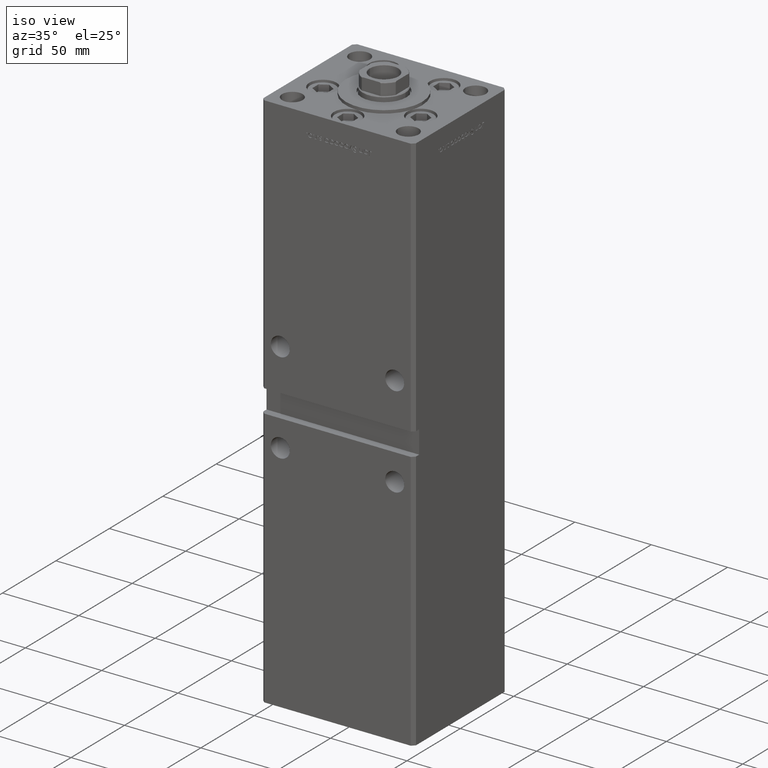
[diagram: clean part render]
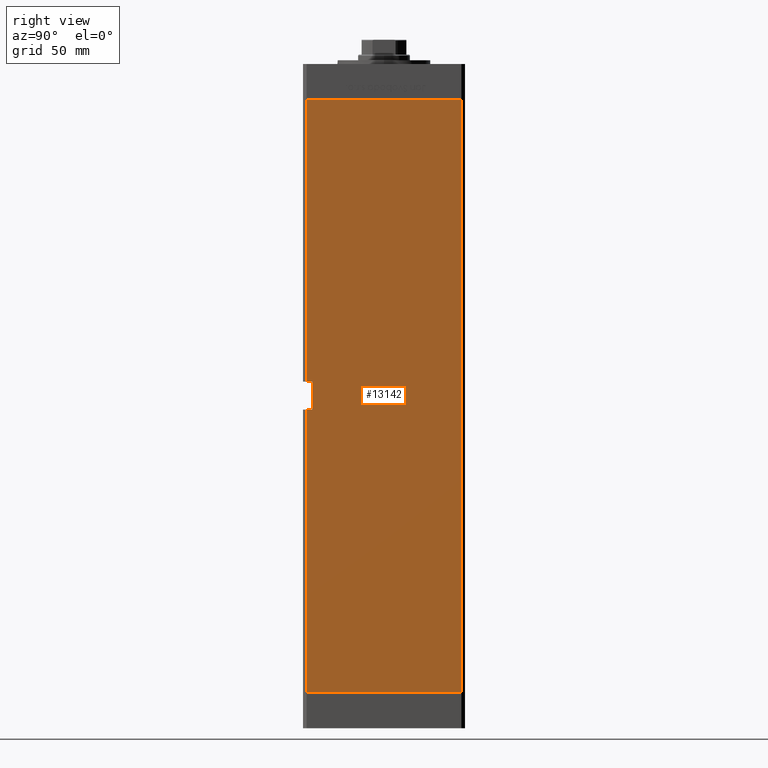
[diagram: tour spotlight — one face highlighted and labeled with its STEP entity id]
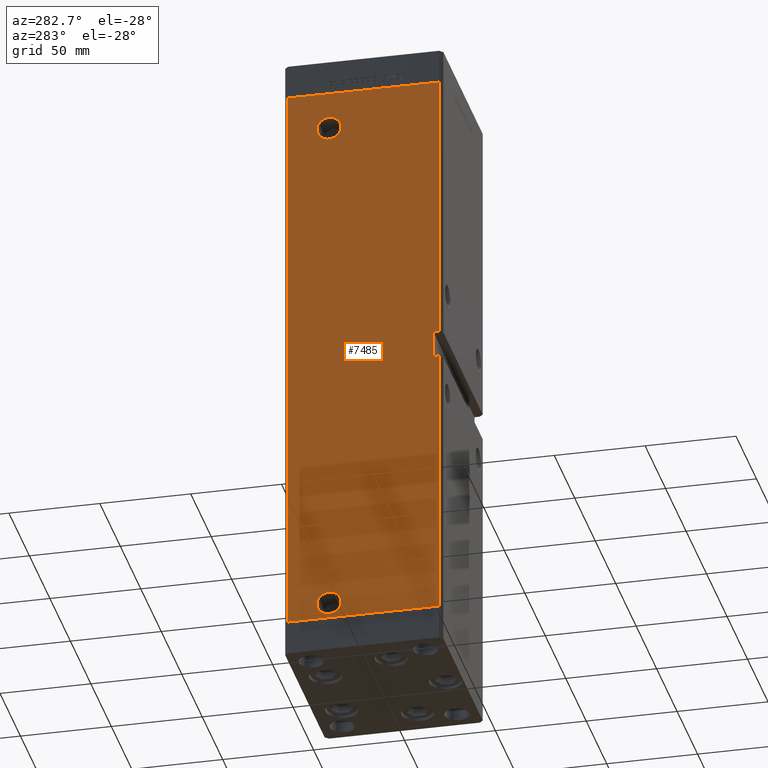
[diagram: tour spotlight — one face highlighted and labeled with its STEP entity id]
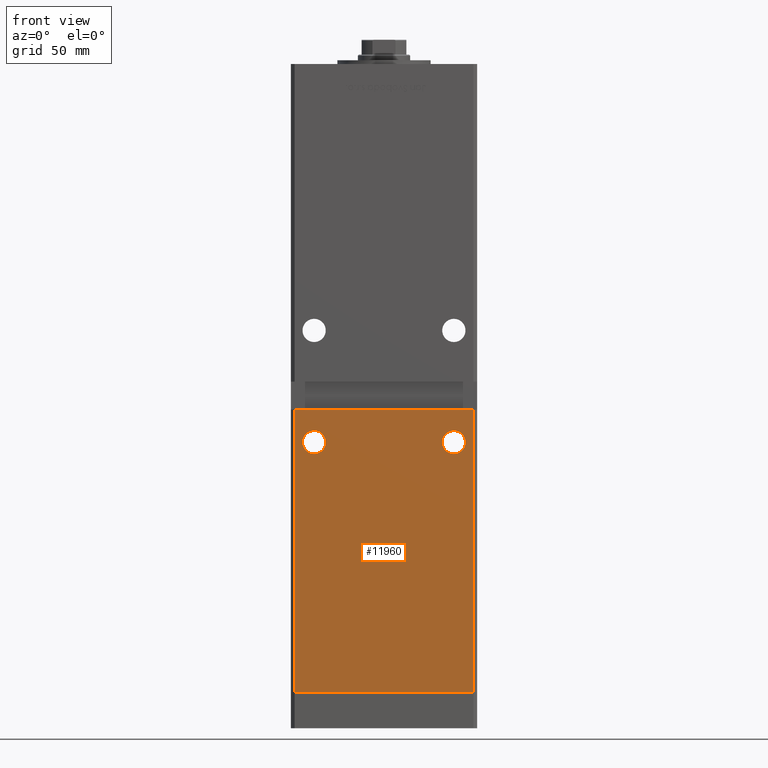
[diagram: tour spotlight — one face highlighted and labeled with its STEP entity id]
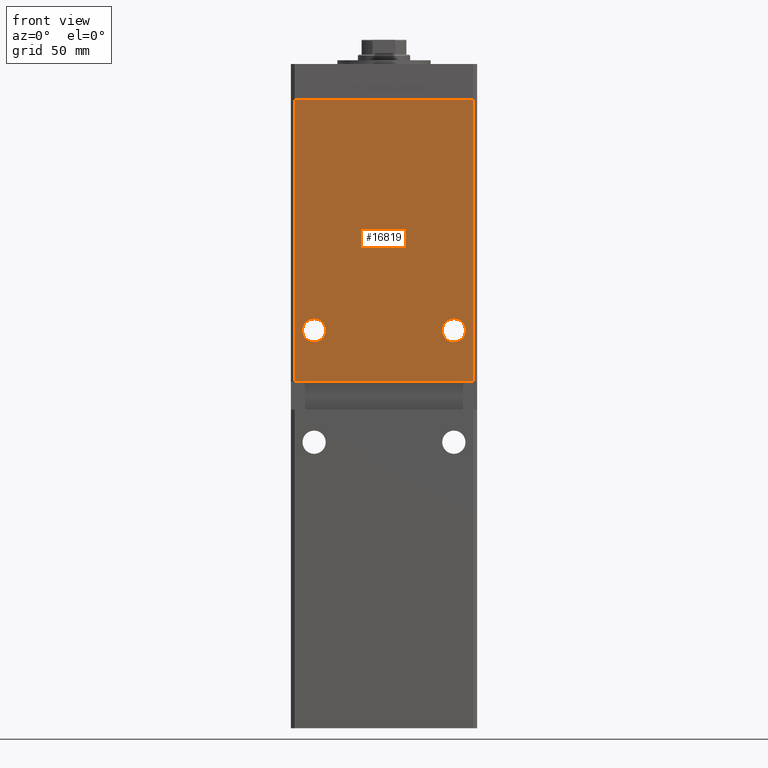
[diagram: tour spotlight — one face highlighted and labeled with its STEP entity id]
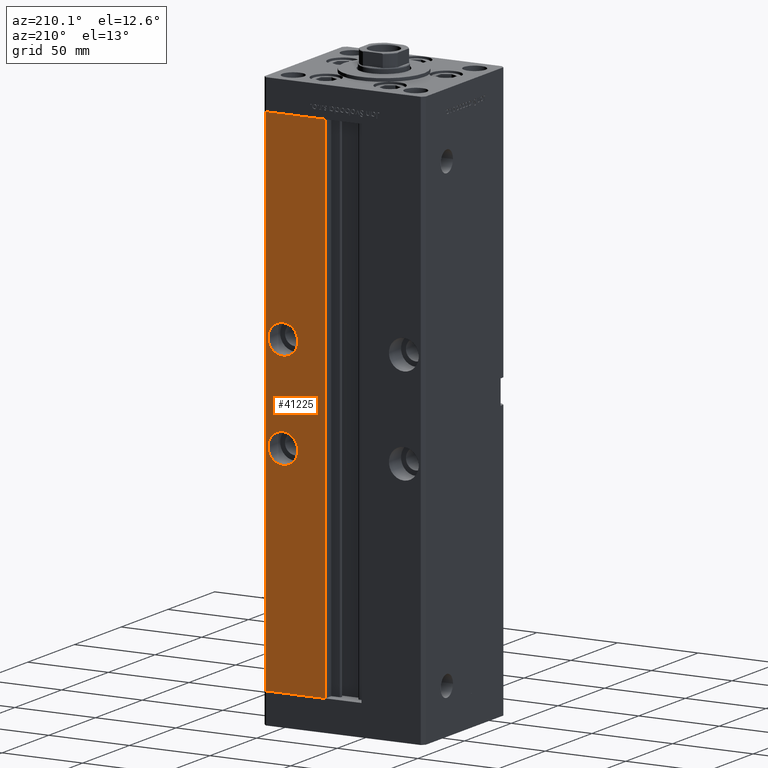
[diagram: tour spotlight — one face highlighted and labeled with its STEP entity id]
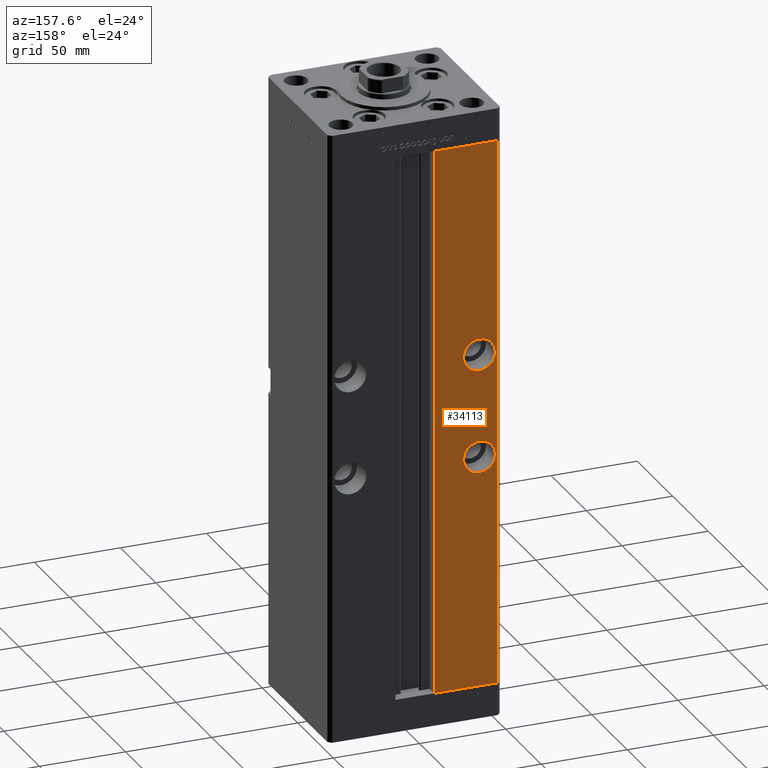
[diagram: tour spotlight — one face highlighted and labeled with its STEP entity id]
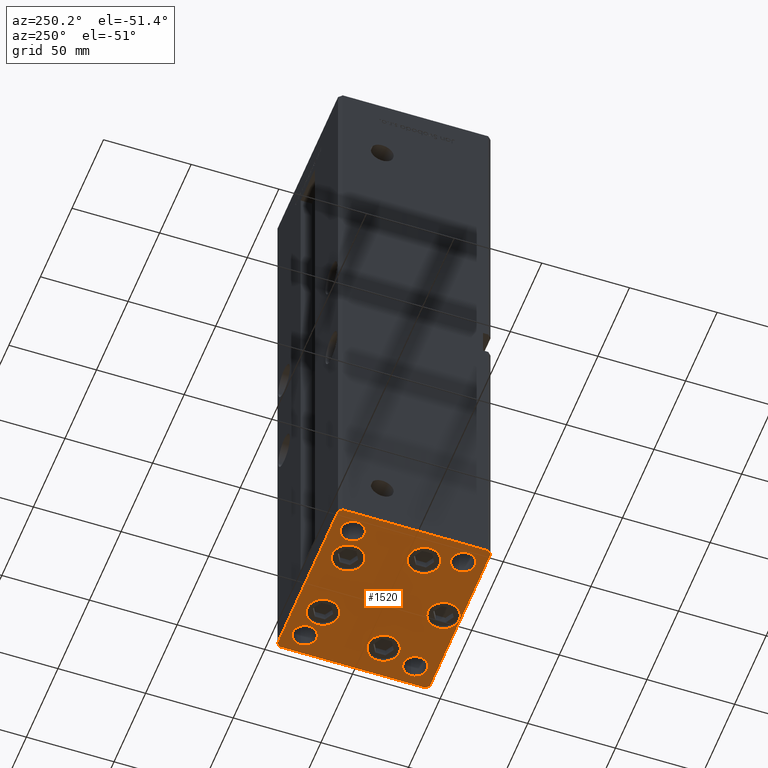
[diagram: tour spotlight — one face highlighted and labeled with its STEP entity id]
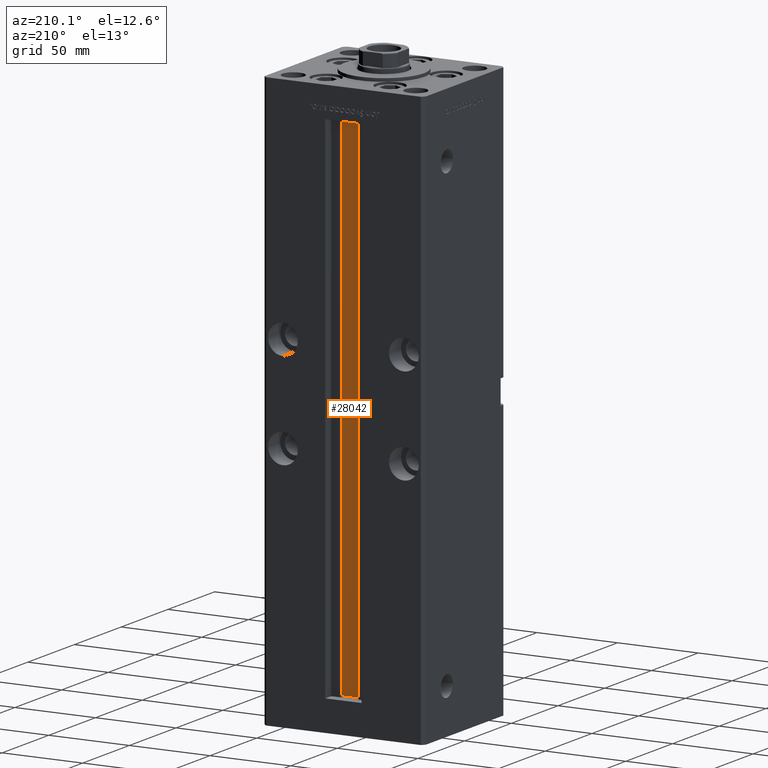
[diagram: tour spotlight — one face highlighted and labeled with its STEP entity id]
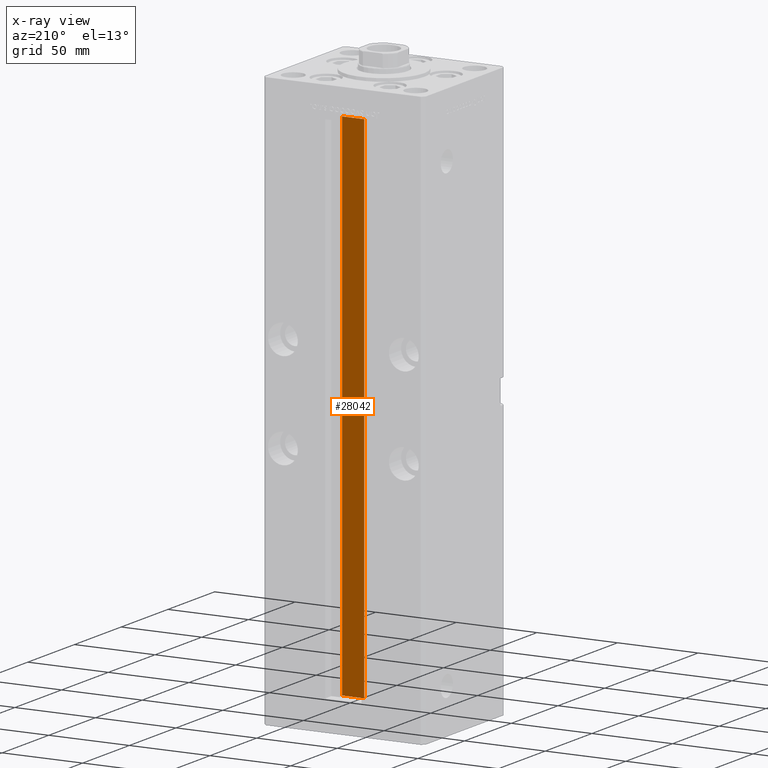
[diagram: x-ray of the same camera — body ghosted, this tour face saturated]
A machine part: a face-by-face anatomy tour. The part has 1212 B-rep faces; the first image is the clean iso view, then the 8 largest visible faces are spotlighted one at a time (largest first), each with its STEP entity span.

Face 1 — right view, entity #13142. In plain terms, the highlighted planar face has unit normal (1, -0, 0).
Definition (entity closure, byte-faithful):
#4 = CARTESIAN_POINT ( 'NONE',  ( 50.00000000000000000, -41.49999999999999289, 152.0000000000000000 ) ) ;
#146 = LINE ( 'NONE', #13325, #20630 ) ;
#1800 = ORIENTED_EDGE ( 'NONE', *, *, #21090, .T. ) ;
#2297 = ORIENTED_EDGE ( 'NONE', *, *, #2324, .T. ) ;
#2324 = EDGE_CURVE ( 'NONE', #4928, #30094, #35822, .T. ) ;
#4550 = PLANE ( 'NONE',  #51509 ) ;
#4602 = CARTESIAN_POINT ( 'NONE',  ( 50.00000000000001421, 41.49999999999999289, 0.000000000000000000 ) ) ;
#4928 = VERTEX_POINT ( 'NONE', #7147 ) ;
#5024 = ORIENTED_EDGE ( 'NONE', *, *, #7084, .T. ) ;
#5170 = EDGE_CURVE ( 'NONE', #4928, #47326, #36660, .T. ) ;
#7084 = EDGE_CURVE ( 'NONE', #25607, #29399, #28248, .T. ) ;
#7147 = CARTESIAN_POINT ( 'NONE',  ( 50.00000000000001421, 41.49999999999999289, 318.5000000000000000 ) ) ;
#7543 = VECTOR ( 'NONE', #9008, 1000.000000000000000 ) ;
#7763 = VERTEX_POINT ( 'NONE', #15645 ) ;
#9008 = DIRECTION ( 'NONE',  ( -0.000000000000000000, -0.000000000000000000, -1.000000000000000000 ) ) ;
#11033 = VECTOR ( 'NONE', #20993, 1000.000000000000000 ) ;
#11738 = ORIENTED_EDGE ( 'NONE', *, *, #5170, .F. ) ;
#12089 = DIRECTION ( 'NONE',  ( 3.344045254895050480E-16, 1.000000000000000000, 0.000000000000000000 ) ) ;
#13142 = ADVANCED_FACE ( 'NONE', ( #28719 ), #4550, .T. ) ;
#13325 = CARTESIAN_POINT ( 'NONE',  ( 50.00000000000000000, -38.50000000000000000, 152.0000000000000000 ) ) ;
#14341 = CARTESIAN_POINT ( 'NONE',  ( 50.00000000000000000, -38.50000000000000000, 167.0000000000000000 ) ) ;
#15645 = CARTESIAN_POINT ( 'NONE',  ( 50.00000000000000000, -41.49999999999999289, 167.0000000000000000 ) ) ;
#16216 = VECTOR ( 'NONE', #39853, 1000.000000000000000 ) ;
#16267 = CARTESIAN_POINT ( 'NONE',  ( 50.00000000000001421, 41.49999999999999289, 318.5000000000000000 ) ) ;
#16630 = CARTESIAN_POINT ( 'NONE',  ( 49.99999999999998579, -41.49999999999999289, 318.5000000000000000 ) ) ;
#17501 = DIRECTION ( 'NONE',  ( -0.000000000000000000, -1.000000000000000000, -0.000000000000000000 ) ) ;
#19675 = EDGE_CURVE ( 'NONE', #40790, #50021, #25616, .T. ) ;
#19984 = CARTESIAN_POINT ( 'NONE',  ( 50.00000000000001421, 41.49999999999999289, 318.5000000000000000 ) ) ;
#20469 = CARTESIAN_POINT ( 'NONE',  ( 50.00000000000000000, -38.50000000000000000, 167.0000000000000000 ) ) ;
#20630 = VECTOR ( 'NONE', #20842, 1000.000000000000000 ) ;
#20842 = DIRECTION ( 'NONE',  ( -0.000000000000000000, -1.000000000000000000, -0.000000000000000000 ) ) ;
#20993 = DIRECTION ( 'NONE',  ( -0.000000000000000000, -0.000000000000000000, -1.000000000000000000 ) ) ;
#21090 = EDGE_CURVE ( 'NONE', #30094, #7763, #41866, .T. ) ;
#21597 = CARTESIAN_POINT ( 'NONE',  ( 50.00000000000000000, -38.50000000000000000, 167.0000000000000000 ) ) ;
#22121 = DIRECTION ( 'NONE',  ( -0.000000000000000000, -0.000000000000000000, 1.000000000000000000 ) ) ;
#25607 = VERTEX_POINT ( 'NONE', #4 ) ;
#25616 = LINE ( 'NONE', #21597, #48563 ) ;
#25746 = CARTESIAN_POINT ( 'NONE',  ( 49.99999999999998579, -41.49999999999999289, 318.5000000000000000 ) ) ;
#27776 = CARTESIAN_POINT ( 'NONE',  ( 50.00000000000001421, 41.49999999999999289, 0.000000000000000000 ) ) ;
#28248 = LINE ( 'NONE', #32813, #11033 ) ;
#28719 = FACE_OUTER_BOUND ( 'NONE', #47060, .T. ) ;
#29399 = VERTEX_POINT ( 'NONE', #49010 ) ;
#30094 = VERTEX_POINT ( 'NONE', #25746 ) ;
#31418 = EDGE_CURVE ( 'NONE', #47326, #29399, #32615, .T. ) ;
#32615 = LINE ( 'NONE', #27776, #16216 ) ;
#32813 = CARTESIAN_POINT ( 'NONE',  ( 49.99999999999998579, -41.49999999999999289, 318.5000000000000000 ) ) ;
#32865 = DIRECTION ( 'NONE',  ( -3.344045254895050973E-16, -1.000000000000000000, 0.000000000000000000 ) ) ;
#34729 = EDGE_CURVE ( 'NONE', #50021, #7763, #49190, .T. ) ;
#35209 = EDGE_CURVE ( 'NONE', #40790, #25607, #146, .T. ) ;
#35822 = LINE ( 'NONE', #19984, #36579 ) ;
#36510 = DIRECTION ( 'NONE',  ( 1.000000000000000000, -3.344045254895050480E-16, 0.000000000000000000 ) ) ;
#36579 = VECTOR ( 'NONE', #32865, 1000.000000000000000 ) ;
#36660 = LINE ( 'NONE', #16267, #7543 ) ;
#38592 = VECTOR ( 'NONE', #17501, 1000.000000000000000 ) ;
#39853 = DIRECTION ( 'NONE',  ( -3.344045254895050973E-16, -1.000000000000000000, 0.000000000000000000 ) ) ;
#40539 = CARTESIAN_POINT ( 'NONE',  ( 50.00000000000001421, 41.49999999999999289, 318.5000000000000000 ) ) ;
#40790 = VERTEX_POINT ( 'NONE', #51918 ) ;
#41866 = LINE ( 'NONE', #16630, #44316 ) ;
#44316 = VECTOR ( 'NONE', #49381, 1000.000000000000000 ) ;
#45675 = ORIENTED_EDGE ( 'NONE', *, *, #19675, .F. ) ;
#45929 = ORIENTED_EDGE ( 'NONE', *, *, #34729, .F. ) ;
#46191 = ORIENTED_EDGE ( 'NONE', *, *, #31418, .F. ) ;
#47060 = EDGE_LOOP ( 'NONE', ( #50719, #5024, #46191, #11738, #2297, #1800, #45929, #45675 ) ) ;
#47326 = VERTEX_POINT ( 'NONE', #4602 ) ;
#48563 = VECTOR ( 'NONE', #22121, 1000.000000000000000 ) ;
#49010 = CARTESIAN_POINT ( 'NONE',  ( 49.99999999999998579, -41.49999999999999289, 0.000000000000000000 ) ) ;
#49190 = LINE ( 'NONE', #20469, #38592 ) ;
#49381 = DIRECTION ( 'NONE',  ( -0.000000000000000000, -0.000000000000000000, -1.000000000000000000 ) ) ;
#50021 = VERTEX_POINT ( 'NONE', #14341 ) ;
#50719 = ORIENTED_EDGE ( 'NONE', *, *, #35209, .T. ) ;
#51509 = AXIS2_PLACEMENT_3D ( 'NONE', #40539, #36510, #12089 ) ;
#51918 = CARTESIAN_POINT ( 'NONE',  ( 49.99999999999998579, -38.49999999999999289, 152.0000000000000000 ) ) ;

Face 2 — auxiliary view, entity #7485. In plain terms, the highlighted planar face has unit normal (1, 0, 0).
Definition (entity closure, byte-faithful):
#280 = AXIS2_PLACEMENT_3D ( 'NONE', #29450, #9047, #45812 ) ;
#734 = CIRCLE ( 'NONE', #5033, 6.580000000000044480 ) ;
#873 = CARTESIAN_POINT ( 'NONE',  ( -49.99999999999997158, -41.50000000000000711, 167.0000000000000000 ) ) ;
#1373 = LINE ( 'NONE', #31179, #27151 ) ;
#1751 = CARTESIAN_POINT ( 'NONE',  ( -50.00000000000001421, 41.49999999999999289, 318.5000000000000000 ) ) ;
#2238 = VERTEX_POINT ( 'NONE', #27245 ) ;
#2497 = VECTOR ( 'NONE', #26167, 1000.000000000000000 ) ;
#4400 = CARTESIAN_POINT ( 'NONE',  ( -49.99999999999997158, -38.50000000000000000, 167.0000000000000000 ) ) ;
#5033 = AXIS2_PLACEMENT_3D ( 'NONE', #39195, #30899, #26862 ) ;
#5118 = ORIENTED_EDGE ( 'NONE', *, *, #47661, .F. ) ;
#5214 = CARTESIAN_POINT ( 'NONE',  ( -50.00000000000001421, 41.49999999999999289, 318.5000000000000000 ) ) ;
#5435 = CIRCLE ( 'NONE', #280, 6.580000000000002736 ) ;
#5444 = VERTEX_POINT ( 'NONE', #873 ) ;
#5695 = CARTESIAN_POINT ( 'NONE',  ( -50.00000000000001421, 41.49999999999999289, 318.5000000000000000 ) ) ;
#6587 = FACE_BOUND ( 'NONE', #50591, .T. ) ;
#7061 = LINE ( 'NONE', #27721, #33446 ) ;
#7161 = ORIENTED_EDGE ( 'NONE', *, *, #28807, .F. ) ;
#7485 = ADVANCED_FACE ( 'NONE', ( #30769, #6587, #34270 ), #30239, .F. ) ;
#7744 = VERTEX_POINT ( 'NONE', #14593 ) ;
#8417 = VERTEX_POINT ( 'NONE', #26807 ) ;
#8865 = CARTESIAN_POINT ( 'NONE',  ( -50.00000000000000711, 19.00000000000000000, 297.5000000000000000 ) ) ;
#9047 = DIRECTION ( 'NONE',  ( -1.000000000000000000, -2.275047181608927644E-16, 0.000000000000000000 ) ) ;
#9192 = VECTOR ( 'NONE', #31698, 1000.000000000000000 ) ;
#9507 = EDGE_CURVE ( 'NONE', #24054, #47336, #47353, .T. ) ;
#11239 = VECTOR ( 'NONE', #17036, 1000.000000000000000 ) ;
#13465 = CARTESIAN_POINT ( 'NONE',  ( -50.00000000000000711, 25.58000000000004448, 297.5000000000000000 ) ) ;
#13568 = VERTEX_POINT ( 'NONE', #32964 ) ;
#14169 = ORIENTED_EDGE ( 'NONE', *, *, #30802, .F. ) ;
#14593 = CARTESIAN_POINT ( 'NONE',  ( -49.99999999999998579, -38.50000000000000000, 152.0000000000000000 ) ) ;
#14797 = ORIENTED_EDGE ( 'NONE', *, *, #18732, .F. ) ;
#15677 = ORIENTED_EDGE ( 'NONE', *, *, #20950, .F. ) ;
#16500 = DIRECTION ( 'NONE',  ( -0.000000000000000000, -1.000000000000000000, -0.000000000000000000 ) ) ;
#16612 = ORIENTED_EDGE ( 'NONE', *, *, #27506, .T. ) ;
#17036 = DIRECTION ( 'NONE',  ( 3.344045254895050973E-16, -1.000000000000000000, 0.000000000000000000 ) ) ;
#17372 = CARTESIAN_POINT ( 'NONE',  ( -50.00000000000001421, 41.49999999999999289, 0.000000000000000000 ) ) ;
#18040 = CARTESIAN_POINT ( 'NONE',  ( -50.00000000000000711, 12.41999999999999638, 9.000000000000007105 ) ) ;
#18567 = AXIS2_PLACEMENT_3D ( 'NONE', #32632, #32899, #49003 ) ;
#18728 = AXIS2_PLACEMENT_3D ( 'NONE', #1751, #19739, #52769 ) ;
#18732 = EDGE_CURVE ( 'NONE', #13568, #7744, #1373, .T. ) ;
#19431 = EDGE_CURVE ( 'NONE', #8417, #24637, #24578, .T. ) ;
#19739 = DIRECTION ( 'NONE',  ( 1.000000000000000000, 3.344045254895050480E-16, -0.000000000000000000 ) ) ;
#20950 = EDGE_CURVE ( 'NONE', #44793, #44168, #40526, .T. ) ;
#20998 = CARTESIAN_POINT ( 'NONE',  ( -50.00000000000001421, 41.49999999999999289, 0.000000000000000000 ) ) ;
#21754 = VECTOR ( 'NONE', #33758, 1000.000000000000000 ) ;
#22361 = CARTESIAN_POINT ( 'NONE',  ( -49.99999999999998579, -41.49999999999999289, 318.5000000000000000 ) ) ;
#24054 = VERTEX_POINT ( 'NONE', #5695 ) ;
#24155 = ORIENTED_EDGE ( 'NONE', *, *, #40632, .F. ) ;
#24578 = CIRCLE ( 'NONE', #18567, 6.580000000000002736 ) ;
#24637 = VERTEX_POINT ( 'NONE', #18040 ) ;
#25070 = VECTOR ( 'NONE', #27429, 1000.000000000000000 ) ;
#26012 = ORIENTED_EDGE ( 'NONE', *, *, #9507, .T. ) ;
#26167 = DIRECTION ( 'NONE',  ( -0.000000000000000000, -0.000000000000000000, -1.000000000000000000 ) ) ;
#26431 = CARTESIAN_POINT ( 'NONE',  ( -50.00000000000001421, 41.49999999999999289, 318.5000000000000000 ) ) ;
#26807 = CARTESIAN_POINT ( 'NONE',  ( -50.00000000000000711, 25.58000000000000185, 9.000000000000007105 ) ) ;
#26862 = DIRECTION ( 'NONE',  ( 0.000000000000000000, -1.000000000000000000, 0.000000000000000000 ) ) ;
#27151 = VECTOR ( 'NONE', #47013, 1000.000000000000000 ) ;
#27245 = CARTESIAN_POINT ( 'NONE',  ( -50.00000000000000711, 12.41999999999995552, 297.5000000000000000 ) ) ;
#27429 = DIRECTION ( 'NONE',  ( -0.000000000000000000, -0.000000000000000000, -1.000000000000000000 ) ) ;
#27506 = EDGE_CURVE ( 'NONE', #13568, #5444, #41185, .T. ) ;
#27721 = CARTESIAN_POINT ( 'NONE',  ( -49.99999999999998579, -38.50000000000000000, 152.0000000000000000 ) ) ;
#28807 = EDGE_CURVE ( 'NONE', #2238, #39708, #30719, .T. ) ;
#28912 = LINE ( 'NONE', #17372, #21754 ) ;
#29450 = CARTESIAN_POINT ( 'NONE',  ( -50.00000000000000711, 19.00000000000000000, 9.000000000000007105 ) ) ;
#30239 = PLANE ( 'NONE',  #18728 ) ;
#30719 = CIRCLE ( 'NONE', #45302, 6.580000000000044480 ) ;
#30769 = FACE_OUTER_BOUND ( 'NONE', #47255, .T. ) ;
#30802 = EDGE_CURVE ( 'NONE', #39708, #2238, #734, .T. ) ;
#30842 = CARTESIAN_POINT ( 'NONE',  ( -49.99999999999998579, -41.49999999999999289, 318.5000000000000000 ) ) ;
#30899 = DIRECTION ( 'NONE',  ( -1.000000000000000000, -2.275047181608927644E-16, 0.000000000000000000 ) ) ;
#31125 = CARTESIAN_POINT ( 'NONE',  ( -49.99999999999998579, -41.49999999999999289, 0.000000000000000000 ) ) ;
#31179 = CARTESIAN_POINT ( 'NONE',  ( -49.99999999999997158, -38.50000000000000000, 167.0000000000000000 ) ) ;
#31698 = DIRECTION ( 'NONE',  ( -0.000000000000000000, -0.000000000000000000, -1.000000000000000000 ) ) ;
#31879 = VERTEX_POINT ( 'NONE', #30842 ) ;
#32397 = VECTOR ( 'NONE', #16500, 1000.000000000000000 ) ;
#32400 = ORIENTED_EDGE ( 'NONE', *, *, #47551, .T. ) ;
#32580 = CARTESIAN_POINT ( 'NONE',  ( -49.99999999999998579, -41.49999999999985079, 152.0000000000000000 ) ) ;
#32632 = CARTESIAN_POINT ( 'NONE',  ( -50.00000000000000711, 19.00000000000000000, 9.000000000000007105 ) ) ;
#32899 = DIRECTION ( 'NONE',  ( -1.000000000000000000, -2.275047181608927644E-16, 0.000000000000000000 ) ) ;
#32964 = CARTESIAN_POINT ( 'NONE',  ( -49.99999999999997158, -38.50000000000000000, 167.0000000000000000 ) ) ;
#33446 = VECTOR ( 'NONE', #44093, 1000.000000000000000 ) ;
#33758 = DIRECTION ( 'NONE',  ( 3.344045254895050973E-16, -1.000000000000000000, 0.000000000000000000 ) ) ;
#34216 = LINE ( 'NONE', #5214, #11239 ) ;
#34270 = FACE_BOUND ( 'NONE', #46140, .T. ) ;
#34663 = EDGE_CURVE ( 'NONE', #7744, #44793, #7061, .T. ) ;
#38036 = ORIENTED_EDGE ( 'NONE', *, *, #44859, .F. ) ;
#39195 = CARTESIAN_POINT ( 'NONE',  ( -50.00000000000000711, 19.00000000000000000, 297.5000000000000000 ) ) ;
#39708 = VERTEX_POINT ( 'NONE', #13465 ) ;
#40526 = LINE ( 'NONE', #45080, #9192 ) ;
#40632 = EDGE_CURVE ( 'NONE', #24054, #31879, #34216, .T. ) ;
#41185 = LINE ( 'NONE', #4400, #32397 ) ;
#41602 = DIRECTION ( 'NONE',  ( 0.000000000000000000, -1.000000000000000000, 0.000000000000000000 ) ) ;
#42331 = ORIENTED_EDGE ( 'NONE', *, *, #34663, .F. ) ;
#42960 = ORIENTED_EDGE ( 'NONE', *, *, #19431, .F. ) ;
#44093 = DIRECTION ( 'NONE',  ( -0.000000000000000000, -1.000000000000000000, -0.000000000000000000 ) ) ;
#44168 = VERTEX_POINT ( 'NONE', #31125 ) ;
#44793 = VERTEX_POINT ( 'NONE', #32580 ) ;
#44859 = EDGE_CURVE ( 'NONE', #31879, #5444, #47557, .T. ) ;
#45080 = CARTESIAN_POINT ( 'NONE',  ( -49.99999999999998579, -41.49999999999999289, 318.5000000000000000 ) ) ;
#45302 = AXIS2_PLACEMENT_3D ( 'NONE', #8865, #46166, #41602 ) ;
#45812 = DIRECTION ( 'NONE',  ( 0.000000000000000000, -1.000000000000000000, 0.000000000000000000 ) ) ;
#46140 = EDGE_LOOP ( 'NONE', ( #7161, #14169 ) ) ;
#46166 = DIRECTION ( 'NONE',  ( -1.000000000000000000, -2.275047181608927644E-16, 0.000000000000000000 ) ) ;
#47013 = DIRECTION ( 'NONE',  ( -9.251858538542963939E-16, 0.000000000000000000, -1.000000000000000000 ) ) ;
#47255 = EDGE_LOOP ( 'NONE', ( #15677, #42331, #14797, #16612, #38036, #24155, #26012, #32400 ) ) ;
#47336 = VERTEX_POINT ( 'NONE', #20998 ) ;
#47353 = LINE ( 'NONE', #26431, #2497 ) ;
#47551 = EDGE_CURVE ( 'NONE', #47336, #44168, #28912, .T. ) ;
#47557 = LINE ( 'NONE', #22361, #25070 ) ;
#47661 = EDGE_CURVE ( 'NONE', #24637, #8417, #5435, .T. ) ;
#49003 = DIRECTION ( 'NONE',  ( 0.000000000000000000, -1.000000000000000000, 0.000000000000000000 ) ) ;
#50591 = EDGE_LOOP ( 'NONE', ( #5118, #42960 ) ) ;
#52769 = DIRECTION ( 'NONE',  ( -3.344045254895050480E-16, 1.000000000000000000, 0.000000000000000000 ) ) ;

Face 3 — front view, entity #11960. In plain terms, the highlighted planar face has unit normal (0, 1, 0).
Definition (entity closure, byte-faithful):
#162 = VERTEX_POINT ( 'NONE', #354 ) ;
#354 = CARTESIAN_POINT ( 'NONE',  ( -47.99999999999998579, -43.50000000000000000, 0.000000000000000000 ) ) ;
#621 = VECTOR ( 'NONE', #6961, 1000.000000000000000 ) ;
#653 = AXIS2_PLACEMENT_3D ( 'NONE', #2181, #30672, #51620 ) ;
#1098 = LINE ( 'NONE', #5394, #3284 ) ;
#1166 = DIRECTION ( 'NONE',  ( 0.000000000000000000, -0.000000000000000000, 1.000000000000000000 ) ) ;
#1594 = EDGE_CURVE ( 'NONE', #33077, #13967, #45162, .T. ) ;
#2181 = CARTESIAN_POINT ( 'NONE',  ( -37.50000000000000000, -43.50000000000000000, 134.5000000000000000 ) ) ;
#2194 = CARTESIAN_POINT ( 'NONE',  ( 37.50000000000000000, -43.50000000000000000, 134.5000000000000000 ) ) ;
#2727 = DIRECTION ( 'NONE',  ( 0.000000000000000000, 0.000000000000000000, 1.000000000000000000 ) ) ;
#3061 = ORIENTED_EDGE ( 'NONE', *, *, #42807, .T. ) ;
#3284 = VECTOR ( 'NONE', #21797, 1000.000000000000000 ) ;
#4637 = EDGE_CURVE ( 'NONE', #44430, #162, #47753, .T. ) ;
#5394 = CARTESIAN_POINT ( 'NONE',  ( 47.99999999999998579, -43.50000000000000000, 318.5000000000000000 ) ) ;
#6273 = VERTEX_POINT ( 'NONE', #21723 ) ;
#6961 = DIRECTION ( 'NONE',  ( -0.000000000000000000, -0.000000000000000000, -1.000000000000000000 ) ) ;
#7290 = CIRCLE ( 'NONE', #52766, 6.250000000000005329 ) ;
#7869 = CIRCLE ( 'NONE', #8741, 6.250000000000005329 ) ;
#8606 = AXIS2_PLACEMENT_3D ( 'NONE', #38747, #22395, #1166 ) ;
#8624 = VERTEX_POINT ( 'NONE', #11363 ) ;
#8741 = AXIS2_PLACEMENT_3D ( 'NONE', #2194, #14839, #2727 ) ;
#9299 = CARTESIAN_POINT ( 'NONE',  ( -49.99999999999998579, -43.50000000000000000, 152.0000000000000000 ) ) ;
#11143 = VERTEX_POINT ( 'NONE', #40371 ) ;
#11363 = CARTESIAN_POINT ( 'NONE',  ( -37.50000000000000000, -43.50000000000000000, 128.2500000000000000 ) ) ;
#11388 = CARTESIAN_POINT ( 'NONE',  ( 37.50000000000000000, -43.50000000000000000, 134.5000000000000000 ) ) ;
#11960 = ADVANCED_FACE ( 'NONE', ( #16494, #32878, #17556 ), #13549, .F. ) ;
#13549 = PLANE ( 'NONE',  #8606 ) ;
#13967 = VERTEX_POINT ( 'NONE', #29669 ) ;
#14443 = ORIENTED_EDGE ( 'NONE', *, *, #1594, .T. ) ;
#14839 = DIRECTION ( 'NONE',  ( 0.000000000000000000, 1.000000000000000000, 0.000000000000000000 ) ) ;
#15094 = ORIENTED_EDGE ( 'NONE', *, *, #51131, .T. ) ;
#16494 = FACE_BOUND ( 'NONE', #52621, .T. ) ;
#17556 = FACE_OUTER_BOUND ( 'NONE', #36614, .T. ) ;
#18047 = DIRECTION ( 'NONE',  ( 0.000000000000000000, 1.000000000000000000, 0.000000000000000000 ) ) ;
#18932 = EDGE_LOOP ( 'NONE', ( #14443, #31619 ) ) ;
#21723 = CARTESIAN_POINT ( 'NONE',  ( 47.99999999999998579, -43.50000000000000000, 0.000000000000000000 ) ) ;
#21797 = DIRECTION ( 'NONE',  ( -0.000000000000000000, -0.000000000000000000, -1.000000000000000000 ) ) ;
#22395 = DIRECTION ( 'NONE',  ( 0.000000000000000000, 1.000000000000000000, 0.000000000000000000 ) ) ;
#23819 = CIRCLE ( 'NONE', #653, 6.250000000000005329 ) ;
#24014 = DIRECTION ( 'NONE',  ( 0.000000000000000000, 1.000000000000000000, 0.000000000000000000 ) ) ;
#24017 = EDGE_CURVE ( 'NONE', #8624, #11143, #23819, .T. ) ;
#25674 = DIRECTION ( 'NONE',  ( 1.000000000000000000, 0.000000000000000000, 0.000000000000000000 ) ) ;
#26426 = EDGE_CURVE ( 'NONE', #44430, #39645, #30221, .T. ) ;
#27637 = CARTESIAN_POINT ( 'NONE',  ( 37.50000000000000000, -43.50000000000000000, 140.7500000000000000 ) ) ;
#29669 = CARTESIAN_POINT ( 'NONE',  ( 37.50000000000000000, -43.50000000000000000, 128.2500000000000000 ) ) ;
#29929 = ORIENTED_EDGE ( 'NONE', *, *, #24017, .T. ) ;
#30221 = LINE ( 'NONE', #9299, #38331 ) ;
#30672 = DIRECTION ( 'NONE',  ( 0.000000000000000000, 1.000000000000000000, 0.000000000000000000 ) ) ;
#30755 = EDGE_CURVE ( 'NONE', #39645, #6273, #1098, .T. ) ;
#31619 = ORIENTED_EDGE ( 'NONE', *, *, #39624, .T. ) ;
#32801 = CARTESIAN_POINT ( 'NONE',  ( 47.99999999999995737, -43.50000000000000000, 152.0000000000000000 ) ) ;
#32878 = FACE_BOUND ( 'NONE', #18932, .T. ) ;
#33077 = VERTEX_POINT ( 'NONE', #27637 ) ;
#33907 = CARTESIAN_POINT ( 'NONE',  ( -37.50000000000000000, -43.50000000000000000, 134.5000000000000000 ) ) ;
#35276 = DIRECTION ( 'NONE',  ( 1.000000000000000000, 0.000000000000000000, 0.000000000000000000 ) ) ;
#36614 = EDGE_LOOP ( 'NONE', ( #38974, #50653, #37074, #3061 ) ) ;
#37074 = ORIENTED_EDGE ( 'NONE', *, *, #4637, .T. ) ;
#38331 = VECTOR ( 'NONE', #25674, 1000.000000000000000 ) ;
#38449 = DIRECTION ( 'NONE',  ( 0.000000000000000000, 0.000000000000000000, 1.000000000000000000 ) ) ;
#38747 = CARTESIAN_POINT ( 'NONE',  ( -47.99999999999998579, -43.50000000000000000, 318.5000000000000000 ) ) ;
#38974 = ORIENTED_EDGE ( 'NONE', *, *, #30755, .F. ) ;
#39560 = CARTESIAN_POINT ( 'NONE',  ( -47.99999999999998579, -43.50000000000000000, 0.000000000000000000 ) ) ;
#39624 = EDGE_CURVE ( 'NONE', #13967, #33077, #7869, .T. ) ;
#39645 = VERTEX_POINT ( 'NONE', #32801 ) ;
#40371 = CARTESIAN_POINT ( 'NONE',  ( -37.50000000000000000, -43.50000000000000000, 140.7500000000000000 ) ) ;
#42605 = CARTESIAN_POINT ( 'NONE',  ( -47.99999999999998579, -43.50000000000000000, 152.0000000000000000 ) ) ;
#42807 = EDGE_CURVE ( 'NONE', #162, #6273, #46035, .T. ) ;
#43730 = CARTESIAN_POINT ( 'NONE',  ( -47.99999999999998579, -43.50000000000000000, 318.5000000000000000 ) ) ;
#43874 = VECTOR ( 'NONE', #35276, 1000.000000000000000 ) ;
#44430 = VERTEX_POINT ( 'NONE', #42605 ) ;
#45162 = CIRCLE ( 'NONE', #51169, 6.250000000000005329 ) ;
#46035 = LINE ( 'NONE', #39560, #43874 ) ;
#47753 = LINE ( 'NONE', #43730, #621 ) ;
#50653 = ORIENTED_EDGE ( 'NONE', *, *, #26426, .F. ) ;
#51131 = EDGE_CURVE ( 'NONE', #11143, #8624, #7290, .T. ) ;
#51169 = AXIS2_PLACEMENT_3D ( 'NONE', #11388, #24014, #52483 ) ;
#51620 = DIRECTION ( 'NONE',  ( 0.000000000000000000, 0.000000000000000000, 1.000000000000000000 ) ) ;
#52483 = DIRECTION ( 'NONE',  ( 0.000000000000000000, 0.000000000000000000, 1.000000000000000000 ) ) ;
#52621 = EDGE_LOOP ( 'NONE', ( #15094, #29929 ) ) ;
#52766 = AXIS2_PLACEMENT_3D ( 'NONE', #33907, #18047, #38449 ) ;

Face 4 — front view, entity #16819. In plain terms, the highlighted planar face has unit normal (0, 1, 0).
Definition (entity closure, byte-faithful):
#584 = VERTEX_POINT ( 'NONE', #43433 ) ;
#1555 = VERTEX_POINT ( 'NONE', #36342 ) ;
#1783 = AXIS2_PLACEMENT_3D ( 'NONE', #42186, #13200, #37346 ) ;
#3780 = FACE_BOUND ( 'NONE', #45637, .T. ) ;
#4059 = CARTESIAN_POINT ( 'NONE',  ( 37.50000000000000000, -43.50000000000000000, 194.5000000000000000 ) ) ;
#5194 = DIRECTION ( 'NONE',  ( 0.000000000000000000, 1.000000000000000000, 0.000000000000000000 ) ) ;
#5421 = CARTESIAN_POINT ( 'NONE',  ( -47.99999999999998579, -43.50000000000000000, 318.5000000000000000 ) ) ;
#5676 = ORIENTED_EDGE ( 'NONE', *, *, #35500, .T. ) ;
#6715 = VERTEX_POINT ( 'NONE', #25344 ) ;
#6857 = VERTEX_POINT ( 'NONE', #42502 ) ;
#7533 = DIRECTION ( 'NONE',  ( 1.000000000000000000, 0.000000000000000000, 0.000000000000000000 ) ) ;
#7585 = VERTEX_POINT ( 'NONE', #32613 ) ;
#7915 = CARTESIAN_POINT ( 'NONE',  ( -37.50000000000000000, -43.50000000000000000, 188.2500000000000000 ) ) ;
#8207 = ORIENTED_EDGE ( 'NONE', *, *, #37773, .F. ) ;
#10434 = VECTOR ( 'NONE', #40490, 1000.000000000000000 ) ;
#13197 = CARTESIAN_POINT ( 'NONE',  ( -37.50000000000000000, -43.50000000000000000, 194.5000000000000000 ) ) ;
#13200 = DIRECTION ( 'NONE',  ( 0.000000000000000000, 1.000000000000000000, 0.000000000000000000 ) ) ;
#14024 = DIRECTION ( 'NONE',  ( -0.000000000000000000, -0.000000000000000000, -1.000000000000000000 ) ) ;
#14248 = DIRECTION ( 'NONE',  ( 0.000000000000000000, 1.000000000000000000, 0.000000000000000000 ) ) ;
#15490 = AXIS2_PLACEMENT_3D ( 'NONE', #41983, #5194, #34975 ) ;
#16157 = CARTESIAN_POINT ( 'NONE',  ( -47.99999999999998579, -43.50000000000000000, 318.5000000000000000 ) ) ;
#16688 = DIRECTION ( 'NONE',  ( 0.000000000000000000, 1.000000000000000000, 0.000000000000000000 ) ) ;
#16819 = ADVANCED_FACE ( 'NONE', ( #3780, #21257, #41375 ), #29029, .F. ) ;
#18368 = EDGE_CURVE ( 'NONE', #30027, #6715, #25699, .T. ) ;
#20451 = DIRECTION ( 'NONE',  ( 0.000000000000000000, -0.000000000000000000, 1.000000000000000000 ) ) ;
#21257 = FACE_BOUND ( 'NONE', #46714, .T. ) ;
#21793 = DIRECTION ( 'NONE',  ( 0.000000000000000000, 0.000000000000000000, 1.000000000000000000 ) ) ;
#21817 = VERTEX_POINT ( 'NONE', #22279 ) ;
#22279 = CARTESIAN_POINT ( 'NONE',  ( 47.99999999999998579, -43.50000000000000000, 318.5000000000000000 ) ) ;
#23426 = CIRCLE ( 'NONE', #36252, 6.250000000000005329 ) ;
#24531 = VECTOR ( 'NONE', #34275, 1000.000000000000000 ) ;
#24938 = ORIENTED_EDGE ( 'NONE', *, *, #18368, .F. ) ;
#25344 = CARTESIAN_POINT ( 'NONE',  ( -47.99999999999998579, -43.50000000000000000, 167.0000000000000000 ) ) ;
#25699 = LINE ( 'NONE', #25965, #24531 ) ;
#25965 = CARTESIAN_POINT ( 'NONE',  ( -49.99999999999997158, -43.50000000000000000, 167.0000000000000000 ) ) ;
#28758 = DIRECTION ( 'NONE',  ( 0.000000000000000000, 1.000000000000000000, 0.000000000000000000 ) ) ;
#29029 = PLANE ( 'NONE',  #37335 ) ;
#30027 = VERTEX_POINT ( 'NONE', #44271 ) ;
#31403 = VERTEX_POINT ( 'NONE', #7915 ) ;
#31786 = CIRCLE ( 'NONE', #42064, 6.250000000000005329 ) ;
#32613 = CARTESIAN_POINT ( 'NONE',  ( -37.50000000000000000, -43.50000000000000000, 200.7500000000000000 ) ) ;
#32715 = CARTESIAN_POINT ( 'NONE',  ( 47.99999999999998579, -43.50000000000000000, 318.5000000000000000 ) ) ;
#34275 = DIRECTION ( 'NONE',  ( -1.000000000000000000, -0.000000000000000000, -0.000000000000000000 ) ) ;
#34975 = DIRECTION ( 'NONE',  ( 0.000000000000000000, 0.000000000000000000, 1.000000000000000000 ) ) ;
#34982 = ORIENTED_EDGE ( 'NONE', *, *, #43162, .F. ) ;
#35500 = EDGE_CURVE ( 'NONE', #584, #1555, #36069, .T. ) ;
#35852 = EDGE_CURVE ( 'NONE', #31403, #7585, #31786, .T. ) ;
#36069 = CIRCLE ( 'NONE', #15490, 6.250000000000005329 ) ;
#36216 = ORIENTED_EDGE ( 'NONE', *, *, #50249, .T. ) ;
#36252 = AXIS2_PLACEMENT_3D ( 'NONE', #4059, #16688, #49723 ) ;
#36342 = CARTESIAN_POINT ( 'NONE',  ( 37.50000000000000000, -43.50000000000000000, 188.2500000000000000 ) ) ;
#36733 = LINE ( 'NONE', #32715, #10434 ) ;
#37335 = AXIS2_PLACEMENT_3D ( 'NONE', #16157, #28758, #20451 ) ;
#37346 = DIRECTION ( 'NONE',  ( 0.000000000000000000, 0.000000000000000000, 1.000000000000000000 ) ) ;
#37773 = EDGE_CURVE ( 'NONE', #6857, #21817, #52390, .T. ) ;
#37918 = CIRCLE ( 'NONE', #1783, 6.250000000000005329 ) ;
#38146 = VECTOR ( 'NONE', #14024, 1000.000000000000000 ) ;
#40427 = EDGE_CURVE ( 'NONE', #7585, #31403, #37918, .T. ) ;
#40490 = DIRECTION ( 'NONE',  ( -0.000000000000000000, -0.000000000000000000, -1.000000000000000000 ) ) ;
#41031 = ORIENTED_EDGE ( 'NONE', *, *, #47260, .T. ) ;
#41375 = FACE_OUTER_BOUND ( 'NONE', #47495, .T. ) ;
#41983 = CARTESIAN_POINT ( 'NONE',  ( 37.50000000000000000, -43.50000000000000000, 194.5000000000000000 ) ) ;
#42064 = AXIS2_PLACEMENT_3D ( 'NONE', #13197, #14248, #21793 ) ;
#42186 = CARTESIAN_POINT ( 'NONE',  ( -37.50000000000000000, -43.50000000000000000, 194.5000000000000000 ) ) ;
#42502 = CARTESIAN_POINT ( 'NONE',  ( -47.99999999999998579, -43.50000000000000000, 318.5000000000000000 ) ) ;
#43162 = EDGE_CURVE ( 'NONE', #21817, #30027, #36733, .T. ) ;
#43433 = CARTESIAN_POINT ( 'NONE',  ( 37.50000000000000000, -43.50000000000000000, 200.7500000000000000 ) ) ;
#44042 = CARTESIAN_POINT ( 'NONE',  ( -47.99999999999998579, -43.50000000000000000, 318.5000000000000000 ) ) ;
#44271 = CARTESIAN_POINT ( 'NONE',  ( 47.99999999999998579, -43.50000000000000000, 167.0000000000000000 ) ) ;
#45637 = EDGE_LOOP ( 'NONE', ( #5676, #41031 ) ) ;
#46200 = ORIENTED_EDGE ( 'NONE', *, *, #40427, .T. ) ;
#46413 = VECTOR ( 'NONE', #7533, 1000.000000000000000 ) ;
#46714 = EDGE_LOOP ( 'NONE', ( #46200, #52711 ) ) ;
#47260 = EDGE_CURVE ( 'NONE', #1555, #584, #23426, .T. ) ;
#47495 = EDGE_LOOP ( 'NONE', ( #36216, #24938, #34982, #8207 ) ) ;
#49723 = DIRECTION ( 'NONE',  ( 0.000000000000000000, 0.000000000000000000, 1.000000000000000000 ) ) ;
#50249 = EDGE_CURVE ( 'NONE', #6857, #6715, #51068, .T. ) ;
#51068 = LINE ( 'NONE', #5421, #38146 ) ;
#52390 = LINE ( 'NONE', #44042, #46413 ) ;
#52711 = ORIENTED_EDGE ( 'NONE', *, *, #35852, .T. ) ;

Face 5 — auxiliary view, entity #41225. In plain terms, the highlighted planar face has unit normal (0, -1, 0).
Definition (entity closure, byte-faithful):
#150 = EDGE_CURVE ( 'NONE', #25955, #19798, #11939, .T. ) ;
#521 = EDGE_CURVE ( 'NONE', #35045, #12182, #23051, .T. ) ;
#1944 = DIRECTION ( 'NONE',  ( 0.000000000000000000, 1.000000000000000000, 0.000000000000000000 ) ) ;
#2823 = EDGE_CURVE ( 'NONE', #12182, #25955, #40573, .T. ) ;
#2892 = EDGE_CURVE ( 'NONE', #47019, #23565, #29775, .T. ) ;
#3210 = PLANE ( 'NONE',  #34431 ) ;
#3991 = ORIENTED_EDGE ( 'NONE', *, *, #150, .T. ) ;
#5824 = LINE ( 'NONE', #38318, #42710 ) ;
#6193 = ORIENTED_EDGE ( 'NONE', *, *, #23417, .T. ) ;
#6819 = EDGE_CURVE ( 'NONE', #27783, #41641, #40174, .T. ) ;
#8049 = FACE_BOUND ( 'NONE', #40078, .T. ) ;
#10003 = DIRECTION ( 'NONE',  ( 0.000000000000000000, 1.000000000000000000, -0.000000000000000000 ) ) ;
#11939 = LINE ( 'NONE', #45465, #32378 ) ;
#12182 = VERTEX_POINT ( 'NONE', #20198 ) ;
#13395 = ORIENTED_EDGE ( 'NONE', *, *, #2823, .T. ) ;
#13541 = VECTOR ( 'NONE', #26800, 1000.000000000000000 ) ;
#16027 = CIRCLE ( 'NONE', #41871, 9.250000000000008882 ) ;
#17293 = DIRECTION ( 'NONE',  ( -0.000000000000000000, -0.000000000000000000, 1.000000000000000000 ) ) ;
#18243 = EDGE_CURVE ( 'NONE', #41641, #27783, #37379, .T. ) ;
#18560 = ORIENTED_EDGE ( 'NONE', *, *, #18243, .F. ) ;
#19087 = DIRECTION ( 'NONE',  ( 0.000000000000000000, -1.000000000000000000, 0.000000000000000000 ) ) ;
#19282 = EDGE_LOOP ( 'NONE', ( #13395, #3991, #6193, #38903 ) ) ;
#19617 = AXIS2_PLACEMENT_3D ( 'NONE', #50844, #1944, #21328 ) ;
#19798 = VERTEX_POINT ( 'NONE', #26396 ) ;
#19883 = CARTESIAN_POINT ( 'NONE',  ( -11.24999999999999645, 43.50000000000000000, 318.5000000000000000 ) ) ;
#20182 = CARTESIAN_POINT ( 'NONE',  ( -11.24999999999999645, 43.50000000000000000, 0.000000000000000000 ) ) ;
#20198 = CARTESIAN_POINT ( 'NONE',  ( 48.00000000000000711, 43.50000000000000000, 0.000000000000000000 ) ) ;
#21328 = DIRECTION ( 'NONE',  ( 0.000000000000000000, 0.000000000000000000, 1.000000000000000000 ) ) ;
#21789 = DIRECTION ( 'NONE',  ( 0.000000000000000000, 1.000000000000000000, -0.000000000000000000 ) ) ;
#21997 = CARTESIAN_POINT ( 'NONE',  ( 48.00000000000000711, 43.50000000000000000, 318.5000000000000000 ) ) ;
#23051 = LINE ( 'NONE', #21997, #13541 ) ;
#23417 = EDGE_CURVE ( 'NONE', #19798, #35045, #5824, .T. ) ;
#23565 = VERTEX_POINT ( 'NONE', #44179 ) ;
#24062 = EDGE_CURVE ( 'NONE', #23565, #47019, #16027, .T. ) ;
#25198 = CARTESIAN_POINT ( 'NONE',  ( 11.24999999999999645, 43.50000000000000000, 0.000000000000000000 ) ) ;
#25955 = VERTEX_POINT ( 'NONE', #25198 ) ;
#26396 = CARTESIAN_POINT ( 'NONE',  ( 11.24999999999998934, 43.50000000000000000, 318.5000000000000000 ) ) ;
#26800 = DIRECTION ( 'NONE',  ( -0.000000000000000000, -0.000000000000000000, -1.000000000000000000 ) ) ;
#26876 = CARTESIAN_POINT ( 'NONE',  ( 37.50000000000000000, 43.50000000000000000, 203.7500000000000284 ) ) ;
#27167 = CARTESIAN_POINT ( 'NONE',  ( 37.50000000000000000, 43.50000000000000000, 134.5000000000000000 ) ) ;
#27203 = VECTOR ( 'NONE', #45126, 1000.000000000000000 ) ;
#27403 = FACE_BOUND ( 'NONE', #43449, .T. ) ;
#27783 = VERTEX_POINT ( 'NONE', #26876 ) ;
#28972 = ORIENTED_EDGE ( 'NONE', *, *, #24062, .F. ) ;
#29775 = CIRCLE ( 'NONE', #38348, 9.250000000000008882 ) ;
#31611 = ORIENTED_EDGE ( 'NONE', *, *, #6819, .F. ) ;
#32378 = VECTOR ( 'NONE', #17293, 1000.000000000000000 ) ;
#33605 = CARTESIAN_POINT ( 'NONE',  ( 37.50000000000000000, 43.50000000000000000, 134.5000000000000000 ) ) ;
#34431 = AXIS2_PLACEMENT_3D ( 'NONE', #19883, #19087, #36247 ) ;
#35045 = VERTEX_POINT ( 'NONE', #35582 ) ;
#35582 = CARTESIAN_POINT ( 'NONE',  ( 48.00000000000000711, 43.50000000000000000, 318.5000000000000000 ) ) ;
#35950 = ORIENTED_EDGE ( 'NONE', *, *, #2892, .F. ) ;
#36247 = DIRECTION ( 'NONE',  ( 0.000000000000000000, -0.000000000000000000, -1.000000000000000000 ) ) ;
#36965 = DIRECTION ( 'NONE',  ( 0.000000000000000000, 1.000000000000000000, 0.000000000000000000 ) ) ;
#37379 = CIRCLE ( 'NONE', #39094, 9.250000000000008882 ) ;
#38318 = CARTESIAN_POINT ( 'NONE',  ( -11.24999999999999645, 43.50000000000000000, 318.5000000000000000 ) ) ;
#38348 = AXIS2_PLACEMENT_3D ( 'NONE', #33605, #21789, #41640 ) ;
#38903 = ORIENTED_EDGE ( 'NONE', *, *, #521, .T. ) ;
#39094 = AXIS2_PLACEMENT_3D ( 'NONE', #49594, #36965, #44754 ) ;
#39743 = FACE_OUTER_BOUND ( 'NONE', #19282, .T. ) ;
#40078 = EDGE_LOOP ( 'NONE', ( #28972, #35950 ) ) ;
#40174 = CIRCLE ( 'NONE', #19617, 9.250000000000008882 ) ;
#40573 = LINE ( 'NONE', #20182, #27203 ) ;
#40668 = CARTESIAN_POINT ( 'NONE',  ( 37.50000000000000000, 43.50000000000000000, 185.2500000000000000 ) ) ;
#41225 = ADVANCED_FACE ( 'NONE', ( #8049, #27403, #39743 ), #3210, .F. ) ;
#41640 = DIRECTION ( 'NONE',  ( 0.000000000000000000, 0.000000000000000000, -1.000000000000000000 ) ) ;
#41641 = VERTEX_POINT ( 'NONE', #40668 ) ;
#41718 = CARTESIAN_POINT ( 'NONE',  ( 37.50000000000000000, 43.50000000000000000, 125.2500000000000000 ) ) ;
#41871 = AXIS2_PLACEMENT_3D ( 'NONE', #27167, #10003, #46763 ) ;
#42352 = DIRECTION ( 'NONE',  ( 1.000000000000000000, 0.000000000000000000, 0.000000000000000000 ) ) ;
#42710 = VECTOR ( 'NONE', #42352, 1000.000000000000000 ) ;
#43449 = EDGE_LOOP ( 'NONE', ( #31611, #18560 ) ) ;
#44179 = CARTESIAN_POINT ( 'NONE',  ( 37.50000000000000000, 43.50000000000000000, 143.7500000000000284 ) ) ;
#44754 = DIRECTION ( 'NONE',  ( 0.000000000000000000, 0.000000000000000000, 1.000000000000000000 ) ) ;
#45126 = DIRECTION ( 'NONE',  ( -1.000000000000000000, 0.000000000000000000, 0.000000000000000000 ) ) ;
#45465 = CARTESIAN_POINT ( 'NONE',  ( 11.24999999999999645, 43.50000000000000000, 0.000000000000000000 ) ) ;
#46763 = DIRECTION ( 'NONE',  ( 0.000000000000000000, 0.000000000000000000, -1.000000000000000000 ) ) ;
#47019 = VERTEX_POINT ( 'NONE', #41718 ) ;
#49594 = CARTESIAN_POINT ( 'NONE',  ( 37.50000000000000000, 43.50000000000000000, 194.5000000000000000 ) ) ;
#50844 = CARTESIAN_POINT ( 'NONE',  ( 37.50000000000000000, 43.50000000000000000, 194.5000000000000000 ) ) ;

Face 6 — auxiliary view, entity #34113. In plain terms, the highlighted planar face has unit normal (0, -1, 0).
Definition (entity closure, byte-faithful):
#34 = VERTEX_POINT ( 'NONE', #2540 ) ;
#145 = EDGE_CURVE ( 'NONE', #11163, #34, #39232, .T. ) ;
#690 = VECTOR ( 'NONE', #24723, 1000.000000000000000 ) ;
#1291 = FACE_BOUND ( 'NONE', #18051, .T. ) ;
#1569 = VERTEX_POINT ( 'NONE', #51948 ) ;
#2540 = CARTESIAN_POINT ( 'NONE',  ( -37.50000000000000000, 43.50000000000000000, 125.2500000000000000 ) ) ;
#2583 = CARTESIAN_POINT ( 'NONE',  ( -37.50000000000000000, 43.50000000000000000, 203.7500000000000284 ) ) ;
#2638 = CARTESIAN_POINT ( 'NONE',  ( -37.50000000000000000, 43.50000000000000000, 134.5000000000000000 ) ) ;
#3009 = CARTESIAN_POINT ( 'NONE',  ( -11.24999999999999645, 43.50000000000000000, 318.5000000000000000 ) ) ;
#3295 = VECTOR ( 'NONE', #9178, 1000.000000000000000 ) ;
#3478 = DIRECTION ( 'NONE',  ( 0.000000000000000000, 1.000000000000000000, -0.000000000000000000 ) ) ;
#3853 = CARTESIAN_POINT ( 'NONE',  ( -37.50000000000000000, 43.50000000000000000, 134.5000000000000000 ) ) ;
#5135 = LINE ( 'NONE', #25557, #3295 ) ;
#7178 = EDGE_CURVE ( 'NONE', #39056, #1569, #5135, .T. ) ;
#9178 = DIRECTION ( 'NONE',  ( -1.000000000000000000, 0.000000000000000000, 0.000000000000000000 ) ) ;
#9379 = ORIENTED_EDGE ( 'NONE', *, *, #22392, .F. ) ;
#9641 = CIRCLE ( 'NONE', #39622, 9.250000000000008882 ) ;
#11163 = VERTEX_POINT ( 'NONE', #12981 ) ;
#11825 = DIRECTION ( 'NONE',  ( 0.000000000000000000, 0.000000000000000000, -1.000000000000000000 ) ) ;
#12312 = ORIENTED_EDGE ( 'NONE', *, *, #25530, .F. ) ;
#12657 = AXIS2_PLACEMENT_3D ( 'NONE', #2638, #31651, #35143 ) ;
#12981 = CARTESIAN_POINT ( 'NONE',  ( -37.50000000000000000, 43.50000000000000000, 143.7500000000000284 ) ) ;
#13613 = ORIENTED_EDGE ( 'NONE', *, *, #145, .F. ) ;
#13681 = FACE_BOUND ( 'NONE', #41047, .T. ) ;
#13936 = DIRECTION ( 'NONE',  ( 0.000000000000000000, -1.000000000000000000, 0.000000000000000000 ) ) ;
#14351 = VECTOR ( 'NONE', #25055, 1000.000000000000000 ) ;
#15243 = DIRECTION ( 'NONE',  ( 0.000000000000000000, -0.000000000000000000, -1.000000000000000000 ) ) ;
#16821 = ORIENTED_EDGE ( 'NONE', *, *, #36458, .T. ) ;
#17951 = CARTESIAN_POINT ( 'NONE',  ( -11.24999999999999645, 43.50000000000000000, 318.5000000000000000 ) ) ;
#18023 = AXIS2_PLACEMENT_3D ( 'NONE', #45011, #52573, #19534 ) ;
#18051 = EDGE_LOOP ( 'NONE', ( #24147, #32853 ) ) ;
#19534 = DIRECTION ( 'NONE',  ( 0.000000000000000000, 0.000000000000000000, -1.000000000000000000 ) ) ;
#20253 = DIRECTION ( 'NONE',  ( 0.000000000000000000, 1.000000000000000000, 0.000000000000000000 ) ) ;
#20261 = AXIS2_PLACEMENT_3D ( 'NONE', #3853, #20253, #25083 ) ;
#20588 = AXIS2_PLACEMENT_3D ( 'NONE', #17951, #13936, #15243 ) ;
#21847 = VERTEX_POINT ( 'NONE', #35400 ) ;
#22392 = EDGE_CURVE ( 'NONE', #34, #11163, #49536, .T. ) ;
#23299 = ORIENTED_EDGE ( 'NONE', *, *, #7178, .T. ) ;
#24147 = ORIENTED_EDGE ( 'NONE', *, *, #41206, .F. ) ;
#24256 = EDGE_CURVE ( 'NONE', #39056, #27599, #49413, .T. ) ;
#24723 = DIRECTION ( 'NONE',  ( -0.000000000000000000, -0.000000000000000000, 1.000000000000000000 ) ) ;
#25055 = DIRECTION ( 'NONE',  ( -0.000000000000000000, -0.000000000000000000, -1.000000000000000000 ) ) ;
#25083 = DIRECTION ( 'NONE',  ( 0.000000000000000000, 0.000000000000000000, 1.000000000000000000 ) ) ;
#25530 = EDGE_CURVE ( 'NONE', #21847, #1569, #33913, .T. ) ;
#25557 = CARTESIAN_POINT ( 'NONE',  ( -11.24999999999999645, 43.50000000000000000, 0.000000000000000000 ) ) ;
#25739 = CIRCLE ( 'NONE', #18023, 9.250000000000008882 ) ;
#27441 = EDGE_LOOP ( 'NONE', ( #16821, #43595, #23299, #12312 ) ) ;
#27599 = VERTEX_POINT ( 'NONE', #3009 ) ;
#30044 = FACE_OUTER_BOUND ( 'NONE', #27441, .T. ) ;
#31651 = DIRECTION ( 'NONE',  ( 0.000000000000000000, 1.000000000000000000, 0.000000000000000000 ) ) ;
#32280 = DIRECTION ( 'NONE',  ( 1.000000000000000000, 0.000000000000000000, 0.000000000000000000 ) ) ;
#32853 = ORIENTED_EDGE ( 'NONE', *, *, #34145, .F. ) ;
#33913 = LINE ( 'NONE', #45433, #14351 ) ;
#34113 = ADVANCED_FACE ( 'NONE', ( #1291, #13681, #30044 ), #38351, .F. ) ;
#34145 = EDGE_CURVE ( 'NONE', #46231, #38087, #25739, .T. ) ;
#35143 = DIRECTION ( 'NONE',  ( 0.000000000000000000, 0.000000000000000000, 1.000000000000000000 ) ) ;
#35400 = CARTESIAN_POINT ( 'NONE',  ( -48.00000000000000711, 43.50000000000000000, 318.5000000000000000 ) ) ;
#36458 = EDGE_CURVE ( 'NONE', #21847, #27599, #48121, .T. ) ;
#38087 = VERTEX_POINT ( 'NONE', #2583 ) ;
#38351 = PLANE ( 'NONE',  #20588 ) ;
#39056 = VERTEX_POINT ( 'NONE', #39896 ) ;
#39232 = CIRCLE ( 'NONE', #20261, 9.250000000000008882 ) ;
#39622 = AXIS2_PLACEMENT_3D ( 'NONE', #44825, #3478, #11825 ) ;
#39896 = CARTESIAN_POINT ( 'NONE',  ( -11.24999999999999645, 43.50000000000000000, 0.000000000000000000 ) ) ;
#41047 = EDGE_LOOP ( 'NONE', ( #13613, #9379 ) ) ;
#41206 = EDGE_CURVE ( 'NONE', #38087, #46231, #9641, .T. ) ;
#43595 = ORIENTED_EDGE ( 'NONE', *, *, #24256, .F. ) ;
#44807 = CARTESIAN_POINT ( 'NONE',  ( -37.50000000000000000, 43.50000000000000000, 185.2500000000000000 ) ) ;
#44825 = CARTESIAN_POINT ( 'NONE',  ( -37.50000000000000000, 43.50000000000000000, 194.5000000000000000 ) ) ;
#45011 = CARTESIAN_POINT ( 'NONE',  ( -37.50000000000000000, 43.50000000000000000, 194.5000000000000000 ) ) ;
#45433 = CARTESIAN_POINT ( 'NONE',  ( -48.00000000000000711, 43.50000000000000000, 318.5000000000000000 ) ) ;
#45523 = VECTOR ( 'NONE', #32280, 1000.000000000000000 ) ;
#45649 = CARTESIAN_POINT ( 'NONE',  ( -11.24999999999999645, 43.50000000000000000, 0.000000000000000000 ) ) ;
#46231 = VERTEX_POINT ( 'NONE', #44807 ) ;
#48121 = LINE ( 'NONE', #51908, #45523 ) ;
#49413 = LINE ( 'NONE', #45649, #690 ) ;
#49536 = CIRCLE ( 'NONE', #12657, 9.250000000000008882 ) ;
#51908 = CARTESIAN_POINT ( 'NONE',  ( -11.24999999999999645, 43.50000000000000000, 318.5000000000000000 ) ) ;
#51948 = CARTESIAN_POINT ( 'NONE',  ( -48.00000000000000711, 43.50000000000000000, 0.000000000000000000 ) ) ;
#52573 = DIRECTION ( 'NONE',  ( 0.000000000000000000, 1.000000000000000000, -0.000000000000000000 ) ) ;

Face 7 — auxiliary view, entity #1520. In plain terms, the highlighted planar face has unit normal (0, 0, -1).
Definition (entity closure, byte-faithful):
#105 = EDGE_CURVE ( 'NONE', #50651, #43354, #16083, .T. ) ;
#168 = CIRCLE ( 'NONE', #13926, 9.000000000000000000 ) ;
#493 = AXIS2_PLACEMENT_3D ( 'NONE', #33893, #4877, #45951 ) ;
#732 = CARTESIAN_POINT ( 'NONE',  ( -50.00000000000000711, 41.49999999999995026, 0.000000000000000000 ) ) ;
#1128 = CARTESIAN_POINT ( 'NONE',  ( 28.82068048781372838, 27.62500000000000000, 0.000000000000000000 ) ) ;
#1311 = DIRECTION ( 'NONE',  ( 0.7071067811865474617, -0.7071067811865474617, 0.000000000000000000 ) ) ;
#1403 = CARTESIAN_POINT ( 'NONE',  ( -8.999999999999996447, -34.00000000000000000, 0.000000000000000000 ) ) ;
#1495 = EDGE_CURVE ( 'NONE', #2058, #2999, #27163, .T. ) ;
#1520 = ADVANCED_FACE ( 'NONE', ( #3834, #19718, #7631, #15941, #4100, #8143, #32323, #44398, #35548, #23478 ), #32591, .T. ) ;
#1574 = CARTESIAN_POINT ( 'NONE',  ( -50.00000000000000000, -41.50000000000000000, 0.000000000000000000 ) ) ;
#1889 = EDGE_CURVE ( 'NONE', #42261, #16617, #25454, .T. ) ;
#1974 = VECTOR ( 'NONE', #25891, 1000.000000000000000 ) ;
#1983 = CARTESIAN_POINT ( 'NONE',  ( -23.05550741379014923, -11.33333333333333748, 0.000000000000000000 ) ) ;
#2058 = VERTEX_POINT ( 'NONE', #40695 ) ;
#2399 = CARTESIAN_POINT ( 'NONE',  ( 31.25000000000000000, 31.49999999999999289, 0.000000000000000000 ) ) ;
#2556 = AXIS2_PLACEMENT_3D ( 'NONE', #21344, #29111, #46287 ) ;
#2690 = CARTESIAN_POINT ( 'NONE',  ( -44.75000000000000000, 31.50000000000000000, 0.000000000000000000 ) ) ;
#2928 = VERTEX_POINT ( 'NONE', #45392 ) ;
#2970 = VERTEX_POINT ( 'NONE', #2399 ) ;
#2999 = VERTEX_POINT ( 'NONE', #44015 ) ;
#3622 = LINE ( 'NONE', #4418, #36140 ) ;
#3834 = FACE_BOUND ( 'NONE', #11865, .T. ) ;
#4100 = FACE_BOUND ( 'NONE', #45793, .T. ) ;
#4166 = LINE ( 'NONE', #43932, #27426 ) ;
#4418 = CARTESIAN_POINT ( 'NONE',  ( 49.99999999999992184, 41.49999999999998579, 0.000000000000000000 ) ) ;
#4614 = DIRECTION ( 'NONE',  ( 1.000000000000000000, 0.000000000000000000, 0.000000000000000000 ) ) ;
#4877 = DIRECTION ( 'NONE',  ( -0.000000000000000000, 0.000000000000000000, 1.000000000000000000 ) ) ;
#4978 = VERTEX_POINT ( 'NONE', #31591 ) ;
#5046 = AXIS2_PLACEMENT_3D ( 'NONE', #36054, #43843, #39804 ) ;
#5621 = CARTESIAN_POINT ( 'NONE',  ( 41.05550741379015278, -11.33333333333332860, 0.000000000000000000 ) ) ;
#6199 = ORIENTED_EDGE ( 'NONE', *, *, #47811, .T. ) ;
#6409 = CARTESIAN_POINT ( 'NONE',  ( 38.00000000000000000, 31.49999999999999289, 0.000000000000000000 ) ) ;
#6431 = DIRECTION ( 'NONE',  ( 0.000000000000000000, -0.000000000000000000, -1.000000000000000000 ) ) ;
#6687 = CARTESIAN_POINT ( 'NONE',  ( 23.05550741379014923, -11.33333333333333037, 0.000000000000000000 ) ) ;
#6894 = CARTESIAN_POINT ( 'NONE',  ( -32.05550741379015278, -11.33333333333333925, 0.000000000000000000 ) ) ;
#6965 = CARTESIAN_POINT ( 'NONE',  ( -47.99999999999999289, -43.50000000000001421, 0.000000000000000000 ) ) ;
#7419 = AXIS2_PLACEMENT_3D ( 'NONE', #44127, #44662, #19444 ) ;
#7465 = CARTESIAN_POINT ( 'NONE',  ( 44.75000000000000000, -31.49999999999999289, 0.000000000000000000 ) ) ;
#7631 = FACE_BOUND ( 'NONE', #53101, .T. ) ;
#7921 = DIRECTION ( 'NONE',  ( 0.000000000000000000, -0.000000000000000000, -1.000000000000000000 ) ) ;
#8143 = FACE_BOUND ( 'NONE', #44385, .T. ) ;
#8279 = CARTESIAN_POINT ( 'NONE',  ( -10.82068048781373903, 27.62499999999999645, 0.000000000000000000 ) ) ;
#8309 = DIRECTION ( 'NONE',  ( -0.000000000000000000, 0.000000000000000000, 1.000000000000000000 ) ) ;
#8316 = CARTESIAN_POINT ( 'NONE',  ( -41.05550741379015278, -11.33333333333333925, 0.000000000000000000 ) ) ;
#8324 = VECTOR ( 'NONE', #20369, 1000.000000000000000 ) ;
#8325 = CIRCLE ( 'NONE', #27187, 6.749999999999999112 ) ;
#8356 = CARTESIAN_POINT ( 'NONE',  ( 44.75000000000000000, 31.49999999999999289, 0.000000000000000000 ) ) ;
#8643 = AXIS2_PLACEMENT_3D ( 'NONE', #15893, #40840, #44874 ) ;
#8722 = EDGE_CURVE ( 'NONE', #44211, #9755, #28196, .T. ) ;
#8820 = EDGE_CURVE ( 'NONE', #16617, #42261, #18776, .T. ) ;
#9240 = EDGE_LOOP ( 'NONE', ( #13391, #25483 ) ) ;
#9509 = CIRCLE ( 'NONE', #33534, 6.749999999999999112 ) ;
#9678 = ORIENTED_EDGE ( 'NONE', *, *, #34469, .T. ) ;
#9682 = CIRCLE ( 'NONE', #11383, 9.000000000000001776 ) ;
#9700 = ORIENTED_EDGE ( 'NONE', *, *, #45130, .T. ) ;
#9755 = VERTEX_POINT ( 'NONE', #5621 ) ;
#9883 = EDGE_LOOP ( 'NONE', ( #23032, #48704, #45858, #24678, #34155, #45440, #27108, #29409 ) ) ;
#9950 = CIRCLE ( 'NONE', #16801, 6.749999999999999112 ) ;
#10835 = VECTOR ( 'NONE', #39272, 1000.000000000000000 ) ;
#10844 = EDGE_CURVE ( 'NONE', #40925, #27678, #4166, .T. ) ;
#10896 = ORIENTED_EDGE ( 'NONE', *, *, #26423, .T. ) ;
#11383 = AXIS2_PLACEMENT_3D ( 'NONE', #6894, #35348, #23281 ) ;
#11865 = EDGE_LOOP ( 'NONE', ( #9700, #10896 ) ) ;
#12006 = CIRCLE ( 'NONE', #2556, 8.999999999999998224 ) ;
#12245 = DIRECTION ( 'NONE',  ( 0.7071067811865463515, 0.7071067811865487940, 0.000000000000000000 ) ) ;
#13020 = ORIENTED_EDGE ( 'NONE', *, *, #1495, .T. ) ;
#13250 = VERTEX_POINT ( 'NONE', #41876 ) ;
#13391 = ORIENTED_EDGE ( 'NONE', *, *, #28184, .T. ) ;
#13411 = EDGE_CURVE ( 'NONE', #2999, #2058, #9509, .T. ) ;
#13605 = EDGE_LOOP ( 'NONE', ( #13020, #35685 ) ) ;
#13926 = AXIS2_PLACEMENT_3D ( 'NONE', #22232, #21970, #50436 ) ;
#14011 = DIRECTION ( 'NONE',  ( -1.000000000000000000, -3.614007241618350743E-16, 0.000000000000000000 ) ) ;
#14042 = EDGE_CURVE ( 'NONE', #25270, #48451, #28375, .T. ) ;
#14058 = CARTESIAN_POINT ( 'NONE',  ( -50.00000000000000711, 41.49999999999995026, 0.000000000000000000 ) ) ;
#15893 = CARTESIAN_POINT ( 'NONE',  ( -32.05550741379015278, -11.33333333333333925, 0.000000000000000000 ) ) ;
#15941 = FACE_BOUND ( 'NONE', #45022, .T. ) ;
#16083 = CIRCLE ( 'NONE', #22123, 6.749999999999999112 ) ;
#16517 = CIRCLE ( 'NONE', #40499, 9.000000000000001776 ) ;
#16617 = VERTEX_POINT ( 'NONE', #1403 ) ;
#16801 = AXIS2_PLACEMENT_3D ( 'NONE', #25571, #29589, #33088 ) ;
#16813 = VERTEX_POINT ( 'NONE', #8356 ) ;
#17442 = CARTESIAN_POINT ( 'NONE',  ( 38.00000000000000000, -31.49999999999999289, 0.000000000000000000 ) ) ;
#17498 = EDGE_CURVE ( 'NONE', #22574, #2928, #50847, .T. ) ;
#18600 = EDGE_CURVE ( 'NONE', #16813, #2970, #9950, .T. ) ;
#18626 = EDGE_CURVE ( 'NONE', #21589, #41002, #23673, .T. ) ;
#18776 = CIRCLE ( 'NONE', #48770, 9.000000000000000000 ) ;
#19036 = DIRECTION ( 'NONE',  ( 1.000000000000000000, 0.000000000000000000, 0.000000000000000000 ) ) ;
#19377 = EDGE_LOOP ( 'NONE', ( #9678, #6199 ) ) ;
#19444 = DIRECTION ( 'NONE',  ( 1.000000000000000000, 0.000000000000000000, 0.000000000000000000 ) ) ;
#19718 = FACE_BOUND ( 'NONE', #19377, .T. ) ;
#19844 = LINE ( 'NONE', #6965, #8324 ) ;
#20267 = CARTESIAN_POINT ( 'NONE',  ( 19.82068048781373193, 27.62500000000000000, 0.000000000000000000 ) ) ;
#20369 = DIRECTION ( 'NONE',  ( 1.000000000000000000, 0.000000000000000000, 0.000000000000000000 ) ) ;
#20475 = DIRECTION ( 'NONE',  ( 0.000000000000000000, -0.000000000000000000, -1.000000000000000000 ) ) ;
#20958 = EDGE_CURVE ( 'NONE', #41002, #21589, #8325, .T. ) ;
#21161 = AXIS2_PLACEMENT_3D ( 'NONE', #26845, #6431, #29827 ) ;
#21344 = CARTESIAN_POINT ( 'NONE',  ( 19.82068048781373193, 27.62500000000000000, 0.000000000000000000 ) ) ;
#21589 = VERTEX_POINT ( 'NONE', #52128 ) ;
#21655 = DIRECTION ( 'NONE',  ( 0.000000000000000000, -0.000000000000000000, -1.000000000000000000 ) ) ;
#21970 = DIRECTION ( 'NONE',  ( 0.000000000000000000, -0.000000000000000000, -1.000000000000000000 ) ) ;
#22123 = AXIS2_PLACEMENT_3D ( 'NONE', #41177, #25352, #24542 ) ;
#22232 = CARTESIAN_POINT ( 'NONE',  ( -19.82068048781373903, 27.62499999999999645, 0.000000000000000000 ) ) ;
#22277 = LINE ( 'NONE', #1574, #36324 ) ;
#22574 = VERTEX_POINT ( 'NONE', #732 ) ;
#23032 = ORIENTED_EDGE ( 'NONE', *, *, #48618, .T. ) ;
#23128 = LINE ( 'NONE', #30121, #31931 ) ;
#23281 = DIRECTION ( 'NONE',  ( 1.000000000000000000, 0.000000000000000000, 0.000000000000000000 ) ) ;
#23478 = FACE_BOUND ( 'NONE', #13605, .T. ) ;
#23673 = CIRCLE ( 'NONE', #493, 6.749999999999999112 ) ;
#23815 = CIRCLE ( 'NONE', #44383, 6.749999999999999112 ) ;
#24270 = DIRECTION ( 'NONE',  ( 0.000000000000000000, -0.000000000000000000, -1.000000000000000000 ) ) ;
#24423 = CIRCLE ( 'NONE', #51888, 6.749999999999999112 ) ;
#24542 = DIRECTION ( 'NONE',  ( 1.000000000000000000, 0.000000000000000000, 0.000000000000000000 ) ) ;
#24666 = ORIENTED_EDGE ( 'NONE', *, *, #14042, .T. ) ;
#24678 = ORIENTED_EDGE ( 'NONE', *, *, #47148, .T. ) ;
#24888 = VECTOR ( 'NONE', #32746, 1000.000000000000000 ) ;
#25270 = VERTEX_POINT ( 'NONE', #1983 ) ;
#25352 = DIRECTION ( 'NONE',  ( 0.000000000000000000, -0.000000000000000000, -1.000000000000000000 ) ) ;
#25454 = CIRCLE ( 'NONE', #21161, 9.000000000000000000 ) ;
#25483 = ORIENTED_EDGE ( 'NONE', *, *, #105, .T. ) ;
#25571 = CARTESIAN_POINT ( 'NONE',  ( 38.00000000000000000, 31.49999999999999289, 0.000000000000000000 ) ) ;
#25867 = EDGE_CURVE ( 'NONE', #4978, #40925, #19844, .T. ) ;
#25891 = DIRECTION ( 'NONE',  ( -1.003213576468515193E-15, 1.000000000000000000, 0.000000000000000000 ) ) ;
#26423 = EDGE_CURVE ( 'NONE', #26646, #34863, #52964, .T. ) ;
#26646 = VERTEX_POINT ( 'NONE', #8279 ) ;
#26672 = LINE ( 'NONE', #43300, #1974 ) ;
#26845 = CARTESIAN_POINT ( 'NONE',  ( 4.163799117101000559E-15, -34.00000000000000000, 0.000000000000000000 ) ) ;
#27108 = ORIENTED_EDGE ( 'NONE', *, *, #33875, .T. ) ;
#27163 = CIRCLE ( 'NONE', #7419, 6.749999999999999112 ) ;
#27187 = AXIS2_PLACEMENT_3D ( 'NONE', #31962, #8309, #52914 ) ;
#27426 = VECTOR ( 'NONE', #12245, 1000.000000000000000 ) ;
#27678 = VERTEX_POINT ( 'NONE', #32028 ) ;
#27735 = AXIS2_PLACEMENT_3D ( 'NONE', #20267, #7921, #48450 ) ;
#28184 = EDGE_CURVE ( 'NONE', #43354, #50651, #23815, .T. ) ;
#28196 = CIRCLE ( 'NONE', #5046, 9.000000000000001776 ) ;
#28294 = DIRECTION ( 'NONE',  ( -0.000000000000000000, 0.000000000000000000, 1.000000000000000000 ) ) ;
#28375 = CIRCLE ( 'NONE', #8643, 9.000000000000001776 ) ;
#28809 = CARTESIAN_POINT ( 'NONE',  ( 32.05550741379015278, -11.33333333333333037, 0.000000000000000000 ) ) ;
#29111 = DIRECTION ( 'NONE',  ( 0.000000000000000000, -0.000000000000000000, -1.000000000000000000 ) ) ;
#29206 = CARTESIAN_POINT ( 'NONE',  ( 9.000000000000003553, -34.00000000000000000, 0.000000000000000000 ) ) ;
#29409 = ORIENTED_EDGE ( 'NONE', *, *, #17498, .T. ) ;
#29589 = DIRECTION ( 'NONE',  ( -0.000000000000000000, 0.000000000000000000, 1.000000000000000000 ) ) ;
#29701 = VERTEX_POINT ( 'NONE', #43854 ) ;
#29827 = DIRECTION ( 'NONE',  ( 1.000000000000000000, 0.000000000000000000, 0.000000000000000000 ) ) ;
#30121 = CARTESIAN_POINT ( 'NONE',  ( 47.99999999999990763, 43.50000000000000000, 0.000000000000000000 ) ) ;
#30582 = DIRECTION ( 'NONE',  ( 1.000000000000000000, 0.000000000000000000, 0.000000000000000000 ) ) ;
#31591 = CARTESIAN_POINT ( 'NONE',  ( -47.99999999999999289, -43.50000000000001421, 0.000000000000000000 ) ) ;
#31931 = VECTOR ( 'NONE', #14011, 1000.000000000000000 ) ;
#31962 = CARTESIAN_POINT ( 'NONE',  ( -38.00000000000000000, 31.50000000000000000, 0.000000000000000000 ) ) ;
#32028 = CARTESIAN_POINT ( 'NONE',  ( 50.00000000000000000, -41.49999999999999289, 0.000000000000000000 ) ) ;
#32323 = FACE_BOUND ( 'NONE', #9240, .T. ) ;
#32591 = PLANE ( 'NONE',  #37424 ) ;
#32746 = DIRECTION ( 'NONE',  ( -0.7071067811865463515, -0.7071067811865487940, 0.000000000000000000 ) ) ;
#32868 = VERTEX_POINT ( 'NONE', #38405 ) ;
#33088 = DIRECTION ( 'NONE',  ( 1.000000000000000000, 0.000000000000000000, 0.000000000000000000 ) ) ;
#33534 = AXIS2_PLACEMENT_3D ( 'NONE', #47472, #35396, #39939 ) ;
#33875 = EDGE_CURVE ( 'NONE', #29701, #22574, #35444, .T. ) ;
#33893 = CARTESIAN_POINT ( 'NONE',  ( -38.00000000000000000, 31.50000000000000000, 0.000000000000000000 ) ) ;
#34155 = ORIENTED_EDGE ( 'NONE', *, *, #43813, .T. ) ;
#34469 = EDGE_CURVE ( 'NONE', #51765, #51127, #12006, .T. ) ;
#34606 = DIRECTION ( 'NONE',  ( 0.000000000000000000, -0.000000000000000000, -1.000000000000000000 ) ) ;
#34863 = VERTEX_POINT ( 'NONE', #48065 ) ;
#35040 = ORIENTED_EDGE ( 'NONE', *, *, #50684, .F. ) ;
#35348 = DIRECTION ( 'NONE',  ( 0.000000000000000000, -0.000000000000000000, -1.000000000000000000 ) ) ;
#35396 = DIRECTION ( 'NONE',  ( 0.000000000000000000, -0.000000000000000000, -1.000000000000000000 ) ) ;
#35444 = LINE ( 'NONE', #45338, #24888 ) ;
#35548 = FACE_OUTER_BOUND ( 'NONE', #9883, .T. ) ;
#35685 = ORIENTED_EDGE ( 'NONE', *, *, #13411, .T. ) ;
#36054 = CARTESIAN_POINT ( 'NONE',  ( 32.05550741379015278, -11.33333333333333037, 0.000000000000000000 ) ) ;
#36140 = VECTOR ( 'NONE', #36385, 1000.000000000000114 ) ;
#36324 = VECTOR ( 'NONE', #1311, 1000.000000000000114 ) ;
#36385 = DIRECTION ( 'NONE',  ( -0.7071067811865474617, 0.7071067811865474617, 0.000000000000000000 ) ) ;
#36600 = CARTESIAN_POINT ( 'NONE',  ( 0.000000000000000000, 0.000000000000000000, 0.000000000000000000 ) ) ;
#37424 = AXIS2_PLACEMENT_3D ( 'NONE', #36600, #28294, #48696 ) ;
#37908 = CARTESIAN_POINT ( 'NONE',  ( 47.99999999999999289, -43.50000000000001421, 0.000000000000000000 ) ) ;
#38020 = CIRCLE ( 'NONE', #27735, 8.999999999999998224 ) ;
#38405 = CARTESIAN_POINT ( 'NONE',  ( 47.99999999999990763, 43.50000000000000000, 0.000000000000000000 ) ) ;
#38529 = DIRECTION ( 'NONE',  ( 1.000000000000000000, 0.000000000000000000, 0.000000000000000000 ) ) ;
#39272 = DIRECTION ( 'NONE',  ( 8.360113137237628665E-17, -1.000000000000000000, 0.000000000000000000 ) ) ;
#39804 = DIRECTION ( 'NONE',  ( 1.000000000000000000, 0.000000000000000000, 0.000000000000000000 ) ) ;
#39939 = DIRECTION ( 'NONE',  ( 1.000000000000000000, 0.000000000000000000, 0.000000000000000000 ) ) ;
#40177 = ORIENTED_EDGE ( 'NONE', *, *, #1889, .T. ) ;
#40493 = CARTESIAN_POINT ( 'NONE',  ( 10.82068048781373193, 27.62500000000000000, 0.000000000000000000 ) ) ;
#40499 = AXIS2_PLACEMENT_3D ( 'NONE', #28809, #24270, #52742 ) ;
#40695 = CARTESIAN_POINT ( 'NONE',  ( -31.24999999999999289, -31.50000000000000000, 0.000000000000000000 ) ) ;
#40840 = DIRECTION ( 'NONE',  ( 0.000000000000000000, -0.000000000000000000, -1.000000000000000000 ) ) ;
#40925 = VERTEX_POINT ( 'NONE', #37908 ) ;
#41002 = VERTEX_POINT ( 'NONE', #2690 ) ;
#41041 = ORIENTED_EDGE ( 'NONE', *, *, #20958, .F. ) ;
#41076 = EDGE_CURVE ( 'NONE', #32868, #29701, #23128, .T. ) ;
#41177 = CARTESIAN_POINT ( 'NONE',  ( 38.00000000000000000, -31.49999999999999289, 0.000000000000000000 ) ) ;
#41668 = CARTESIAN_POINT ( 'NONE',  ( 4.163799117101000559E-15, -34.00000000000000000, 0.000000000000000000 ) ) ;
#41876 = CARTESIAN_POINT ( 'NONE',  ( 49.99999999999992184, 41.49999999999998579, 0.000000000000000000 ) ) ;
#42261 = VERTEX_POINT ( 'NONE', #29206 ) ;
#42491 = ORIENTED_EDGE ( 'NONE', *, *, #18600, .F. ) ;
#43149 = ORIENTED_EDGE ( 'NONE', *, *, #8820, .T. ) ;
#43194 = CARTESIAN_POINT ( 'NONE',  ( 31.25000000000000000, -31.49999999999999289, 0.000000000000000000 ) ) ;
#43300 = CARTESIAN_POINT ( 'NONE',  ( 50.00000000000000000, -41.49999999999999289, 0.000000000000000000 ) ) ;
#43354 = VERTEX_POINT ( 'NONE', #7465 ) ;
#43373 = ORIENTED_EDGE ( 'NONE', *, *, #18626, .F. ) ;
#43813 = EDGE_CURVE ( 'NONE', #13250, #32868, #3622, .T. ) ;
#43843 = DIRECTION ( 'NONE',  ( 0.000000000000000000, -0.000000000000000000, -1.000000000000000000 ) ) ;
#43854 = CARTESIAN_POINT ( 'NONE',  ( -48.00000000000000711, 43.49999999999996447, 0.000000000000000000 ) ) ;
#43932 = CARTESIAN_POINT ( 'NONE',  ( 47.99999999999999289, -43.50000000000001421, 0.000000000000000000 ) ) ;
#43988 = DIRECTION ( 'NONE',  ( -0.000000000000000000, 0.000000000000000000, 1.000000000000000000 ) ) ;
#44015 = CARTESIAN_POINT ( 'NONE',  ( -44.74999999999999289, -31.50000000000000000, 0.000000000000000000 ) ) ;
#44127 = CARTESIAN_POINT ( 'NONE',  ( -37.99999999999999289, -31.50000000000000000, 0.000000000000000000 ) ) ;
#44211 = VERTEX_POINT ( 'NONE', #6687 ) ;
#44383 = AXIS2_PLACEMENT_3D ( 'NONE', #17442, #34606, #30582 ) ;
#44385 = EDGE_LOOP ( 'NONE', ( #42491, #35040 ) ) ;
#44398 = FACE_BOUND ( 'NONE', #52049, .T. ) ;
#44662 = DIRECTION ( 'NONE',  ( 0.000000000000000000, -0.000000000000000000, -1.000000000000000000 ) ) ;
#44823 = ORIENTED_EDGE ( 'NONE', *, *, #45261, .T. ) ;
#44874 = DIRECTION ( 'NONE',  ( 1.000000000000000000, 0.000000000000000000, 0.000000000000000000 ) ) ;
#45022 = EDGE_LOOP ( 'NONE', ( #43149, #40177 ) ) ;
#45130 = EDGE_CURVE ( 'NONE', #34863, #26646, #168, .T. ) ;
#45261 = EDGE_CURVE ( 'NONE', #48451, #25270, #9682, .T. ) ;
#45338 = CARTESIAN_POINT ( 'NONE',  ( -48.00000000000000711, 43.49999999999996447, 0.000000000000000000 ) ) ;
#45392 = CARTESIAN_POINT ( 'NONE',  ( -50.00000000000000000, -41.50000000000000000, 0.000000000000000000 ) ) ;
#45440 = ORIENTED_EDGE ( 'NONE', *, *, #41076, .T. ) ;
#45668 = EDGE_CURVE ( 'NONE', #9755, #44211, #16517, .T. ) ;
#45793 = EDGE_LOOP ( 'NONE', ( #44823, #24666 ) ) ;
#45858 = ORIENTED_EDGE ( 'NONE', *, *, #10844, .T. ) ;
#45951 = DIRECTION ( 'NONE',  ( 1.000000000000000000, 0.000000000000000000, 0.000000000000000000 ) ) ;
#46287 = DIRECTION ( 'NONE',  ( 1.000000000000000000, 0.000000000000000000, 0.000000000000000000 ) ) ;
#47148 = EDGE_CURVE ( 'NONE', #27678, #13250, #26672, .T. ) ;
#47472 = CARTESIAN_POINT ( 'NONE',  ( -37.99999999999999289, -31.50000000000000000, 0.000000000000000000 ) ) ;
#47788 = AXIS2_PLACEMENT_3D ( 'NONE', #51160, #21655, #38529 ) ;
#47811 = EDGE_CURVE ( 'NONE', #51127, #51765, #38020, .T. ) ;
#48065 = CARTESIAN_POINT ( 'NONE',  ( -28.82068048781373548, 27.62499999999999645, 0.000000000000000000 ) ) ;
#48450 = DIRECTION ( 'NONE',  ( 1.000000000000000000, 0.000000000000000000, 0.000000000000000000 ) ) ;
#48451 = VERTEX_POINT ( 'NONE', #8316 ) ;
#48618 = EDGE_CURVE ( 'NONE', #2928, #4978, #22277, .T. ) ;
#48696 = DIRECTION ( 'NONE',  ( 1.000000000000000000, 0.000000000000000000, 0.000000000000000000 ) ) ;
#48704 = ORIENTED_EDGE ( 'NONE', *, *, #25867, .T. ) ;
#48770 = AXIS2_PLACEMENT_3D ( 'NONE', #41668, #20475, #4614 ) ;
#50436 = DIRECTION ( 'NONE',  ( 1.000000000000000000, 0.000000000000000000, 0.000000000000000000 ) ) ;
#50577 = ORIENTED_EDGE ( 'NONE', *, *, #45668, .T. ) ;
#50651 = VERTEX_POINT ( 'NONE', #43194 ) ;
#50684 = EDGE_CURVE ( 'NONE', #2970, #16813, #24423, .T. ) ;
#50847 = LINE ( 'NONE', #14058, #10835 ) ;
#51127 = VERTEX_POINT ( 'NONE', #1128 ) ;
#51160 = CARTESIAN_POINT ( 'NONE',  ( -19.82068048781373903, 27.62499999999999645, 0.000000000000000000 ) ) ;
#51765 = VERTEX_POINT ( 'NONE', #40493 ) ;
#51888 = AXIS2_PLACEMENT_3D ( 'NONE', #6409, #43988, #19036 ) ;
#52025 = ORIENTED_EDGE ( 'NONE', *, *, #8722, .T. ) ;
#52049 = EDGE_LOOP ( 'NONE', ( #43373, #41041 ) ) ;
#52128 = CARTESIAN_POINT ( 'NONE',  ( -31.25000000000000000, 31.50000000000000000, 0.000000000000000000 ) ) ;
#52742 = DIRECTION ( 'NONE',  ( 1.000000000000000000, 0.000000000000000000, 0.000000000000000000 ) ) ;
#52914 = DIRECTION ( 'NONE',  ( 1.000000000000000000, 0.000000000000000000, 0.000000000000000000 ) ) ;
#52964 = CIRCLE ( 'NONE', #47788, 9.000000000000000000 ) ;
#53101 = EDGE_LOOP ( 'NONE', ( #52025, #50577 ) ) ;

Face 8 — auxiliary view, entity #28042. An x-ray twin of the same camera follows (body ghosted, this face saturated) — the face is partly hidden behind the body. In plain terms, the highlighted planar face has unit normal (0, -1, 0).
Definition (entity closure, byte-faithful):
#333 = DIRECTION ( 'NONE',  ( -0.000000000000000000, -0.000000000000000000, 1.000000000000000000 ) ) ;
#2684 = CARTESIAN_POINT ( 'NONE',  ( 6.876153656360465050, 32.99999999999986500, 0.000000000000000000 ) ) ;
#4888 = EDGE_CURVE ( 'NONE', #31083, #47972, #13648, .T. ) ;
#4893 = LINE ( 'NONE', #29605, #12427 ) ;
#9238 = VECTOR ( 'NONE', #46377, 1000.000000000000000 ) ;
#12427 = VECTOR ( 'NONE', #21021, 1000.000000000000000 ) ;
#12608 = CARTESIAN_POINT ( 'NONE',  ( 6.876153656360465050, 32.99999999999986500, 0.000000000000000000 ) ) ;
#13648 = LINE ( 'NONE', #30016, #9238 ) ;
#13825 = CARTESIAN_POINT ( 'NONE',  ( 6.876153656360465050, 32.99999999999986500, 0.000000000000000000 ) ) ;
#19953 = EDGE_LOOP ( 'NONE', ( #26090, #31074, #44554, #41488 ) ) ;
#20499 = CARTESIAN_POINT ( 'NONE',  ( -6.876153656360465050, 32.99999999999986500, 0.000000000000000000 ) ) ;
#20716 = EDGE_CURVE ( 'NONE', #47972, #32573, #38686, .T. ) ;
#21021 = DIRECTION ( 'NONE',  ( -1.000000000000000000, 0.000000000000000000, 0.000000000000000000 ) ) ;
#21210 = FACE_OUTER_BOUND ( 'NONE', #19953, .T. ) ;
#26090 = ORIENTED_EDGE ( 'NONE', *, *, #20716, .F. ) ;
#28042 = ADVANCED_FACE ( 'NONE', ( #21210 ), #28711, .F. ) ;
#28711 = PLANE ( 'NONE',  #40088 ) ;
#29605 = CARTESIAN_POINT ( 'NONE',  ( 0.000000000000000000, 32.99999999999986500, 318.5000000000000000 ) ) ;
#30016 = CARTESIAN_POINT ( 'NONE',  ( 6.876153656360465050, 32.99999999999986500, 0.000000000000000000 ) ) ;
#30642 = DIRECTION ( 'NONE',  ( -0.000000000000000000, -0.000000000000000000, 1.000000000000000000 ) ) ;
#31074 = ORIENTED_EDGE ( 'NONE', *, *, #4888, .F. ) ;
#31083 = VERTEX_POINT ( 'NONE', #36430 ) ;
#31484 = VECTOR ( 'NONE', #30642, 1000.000000000000000 ) ;
#32573 = VERTEX_POINT ( 'NONE', #40079 ) ;
#36430 = CARTESIAN_POINT ( 'NONE',  ( -6.876153656360465050, 32.99999999999986500, 0.000000000000000000 ) ) ;
#37130 = LINE ( 'NONE', #20499, #38815 ) ;
#38686 = LINE ( 'NONE', #2684, #31484 ) ;
#38801 = VERTEX_POINT ( 'NONE', #44855 ) ;
#38815 = VECTOR ( 'NONE', #333, 1000.000000000000000 ) ;
#40079 = CARTESIAN_POINT ( 'NONE',  ( 6.876153656360465050, 32.99999999999986500, 318.5000000000000000 ) ) ;
#40088 = AXIS2_PLACEMENT_3D ( 'NONE', #12608, #49126, #45083 ) ;
#41488 = ORIENTED_EDGE ( 'NONE', *, *, #51069, .F. ) ;
#44554 = ORIENTED_EDGE ( 'NONE', *, *, #45575, .T. ) ;
#44855 = CARTESIAN_POINT ( 'NONE',  ( -6.876153656360465050, 32.99999999999986500, 318.5000000000000000 ) ) ;
#45083 = DIRECTION ( 'NONE',  ( 0.000000000000000000, 0.000000000000000000, -1.000000000000000000 ) ) ;
#45575 = EDGE_CURVE ( 'NONE', #31083, #38801, #37130, .T. ) ;
#46377 = DIRECTION ( 'NONE',  ( 1.000000000000000000, -0.000000000000000000, -0.000000000000000000 ) ) ;
#47972 = VERTEX_POINT ( 'NONE', #13825 ) ;
#49126 = DIRECTION ( 'NONE',  ( 0.000000000000000000, -1.000000000000000000, -0.000000000000000000 ) ) ;
#51069 = EDGE_CURVE ( 'NONE', #32573, #38801, #4893, .T. ) ;